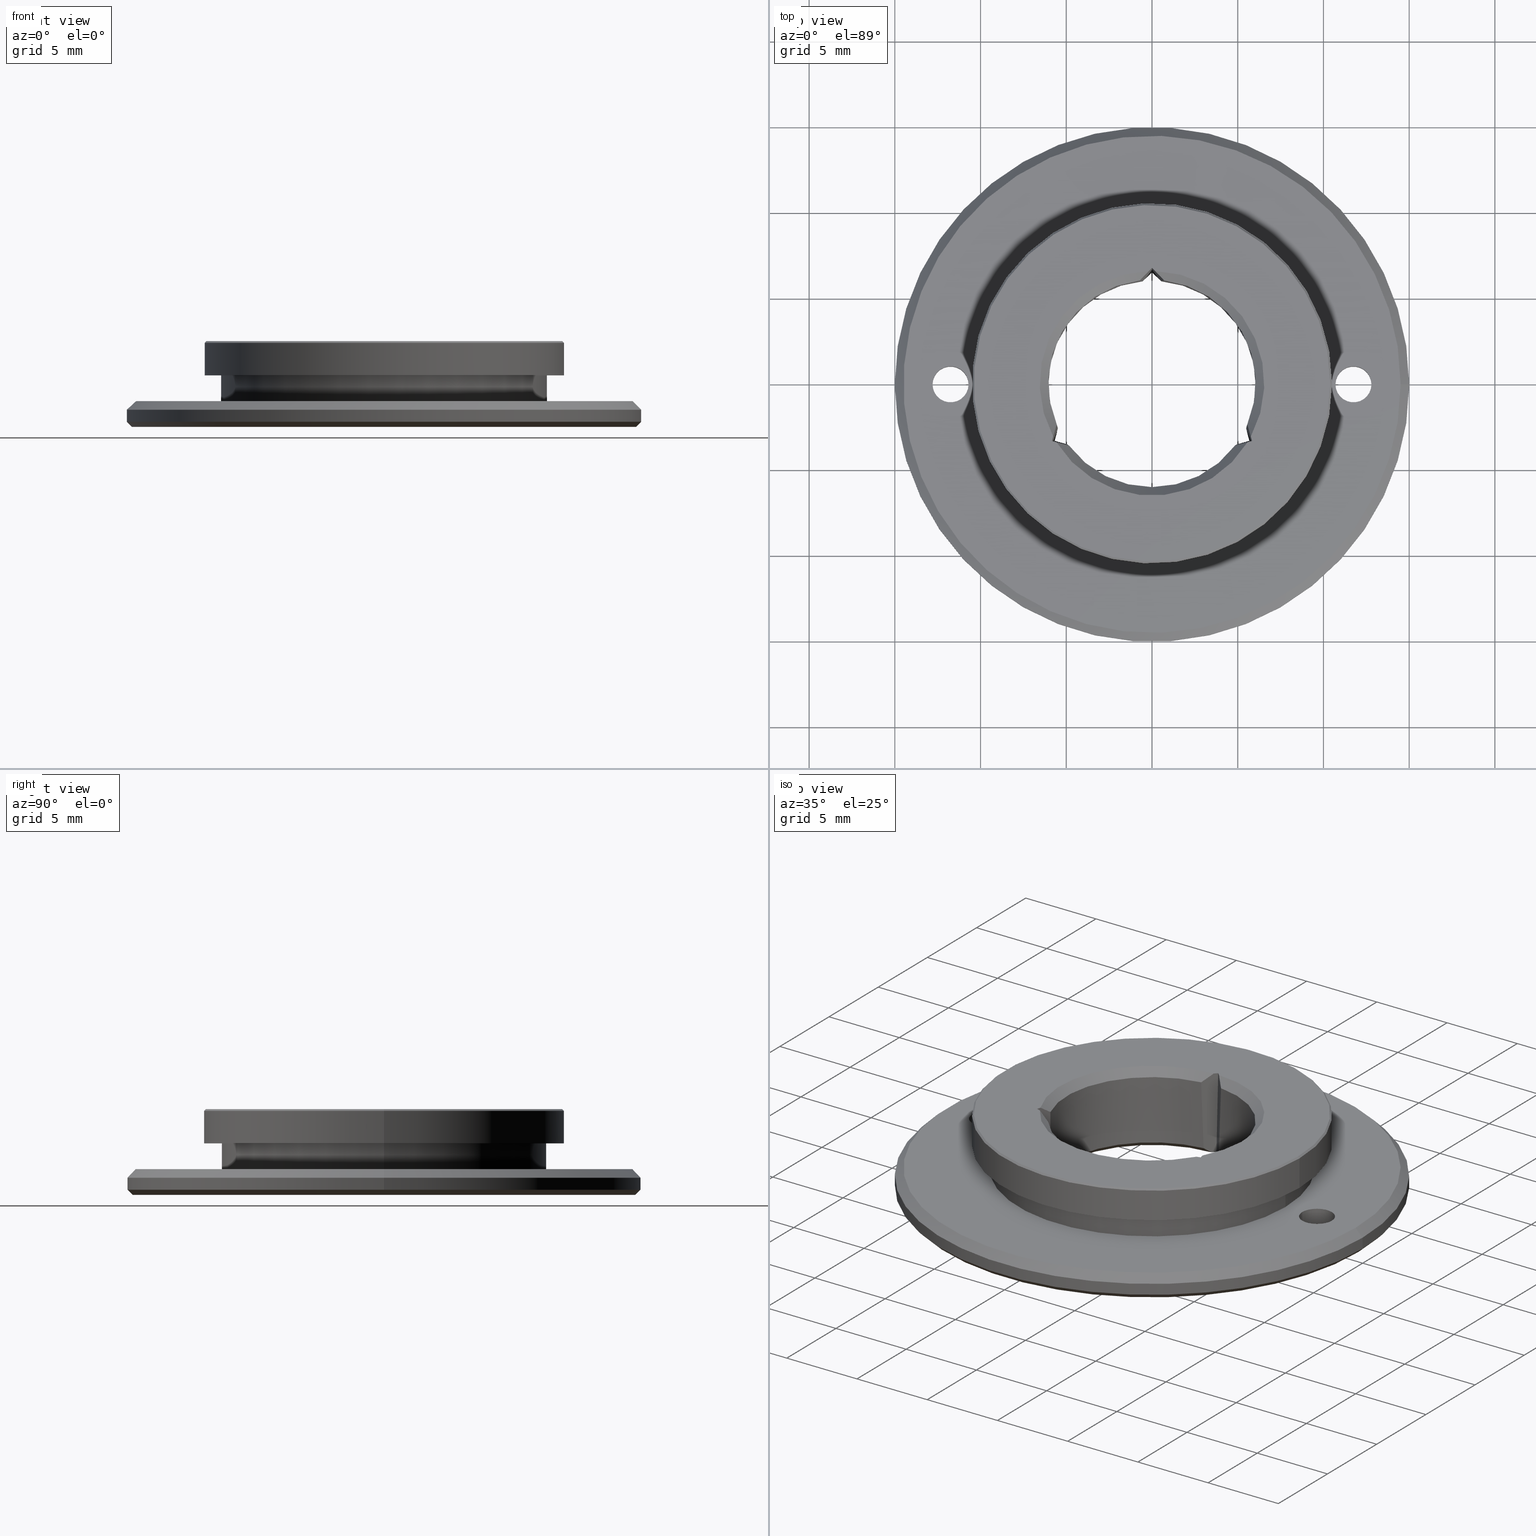
[diagram: canonical four-view strip — front | top / right | iso, engineering-drawing reading convention]
A machine part, canonical four-view strip (front | top / right | iso — engineering-drawing reading convention). The complete STEP part file that produces these views, byte-faithful:
ISO-10303-21;
HEADER;
FILE_DESCRIPTION (( 'STEP AP203' ),
    '1' );
FILE_NAME ('SKJ16-12.STEP',
    '2020-11-13T15:55:45',
    ( 'Adriana' ),
    ( 'HP Inc.' ),
    'SwSTEP 2.0',
    'SolidWorks 2020',
    '' );
FILE_SCHEMA (( 'CONFIG_CONTROL_DESIGN' ));
ENDSEC;

DATA;
#1 = CARTESIAN_POINT ( 'NONE',  ( -5.565936619785342820, -2.840455048098886603, -2.397805460469685457 ) ) ;
#2 = ORIENTED_EDGE ( 'NONE', *, *, #492, .F. ) ;
#3 = FACE_BOUND ( 'NONE', #213, .T. ) ;
#4 = FACE_OUTER_BOUND ( 'NONE', #522, .T. ) ;
#5 = CARTESIAN_POINT ( 'NONE',  ( -12.79999999999998828, 0.0000000000000000000, -2.500000000000004441 ) ) ;
#6 = ORIENTED_EDGE ( 'NONE', *, *, #587, .T. ) ;
#7 = PLANE ( 'NONE',  #392 ) ;
#8 = B_SPLINE_CURVE_WITH_KNOTS ( 'NONE', 3,
 ( #468, #737, #668, #260 ),
 .UNSPECIFIED., .F., .F.,
 ( 4, 4 ),
 ( 3.743883699496791185E-07, 0.0009016725439581060528 ),
 .UNSPECIFIED. ) ;
#9 = CIRCLE ( 'NONE', #658, 6.350000000000008527 ) ;
#10 = DIRECTION ( 'NONE',  ( 1.000000000000000000, 0.0000000000000000000, 0.0000000000000000000 ) ) ;
#11 = CIRCLE ( 'NONE', #536, 15.00000000000000000 ) ;
#12 = CARTESIAN_POINT ( 'NONE',  ( 4.850066468594370406, -3.616539126045306141, 2.000000000000015099 ) ) ;
#13 = CIRCLE ( 'NONE', #539, 1.049999999999988498 ) ;
#14 = VERTEX_POINT ( 'NONE', #804 ) ;
#15 = VERTEX_POINT ( 'NONE', #323 ) ;
#16 = CARTESIAN_POINT ( 'NONE',  ( 10.70000000000001172, 0.0000000000000000000, -2.500000000000004441 ) ) ;
#17 = EDGE_CURVE ( 'NONE', #656, #547, #703, .T. ) ;
#18 = CARTESIAN_POINT ( 'NONE',  ( -5.577473270500524549, -3.434281863337980578, 2.500000000000002220 ) ) ;
#19 = DATE_TIME_ROLE ( 'creation_date' ) ;
#20 = ORIENTED_EDGE ( 'NONE', *, *, #718, .T. ) ;
#21 = CARTESIAN_POINT ( 'NONE',  ( -4.945673031092773009, -3.484654684401544689, -2.199999999999994404 ) ) ;
#22 = CARTESIAN_POINT ( 'NONE',  ( 0.1854387021565571947, 6.547374472851121396, 2.500000000000001776 ) ) ;
#23 =( BOUNDED_CURVE ( )  B_SPLINE_CURVE ( 3, ( #236, #497, #371, #168 ),
 .UNSPECIFIED., .F., .T. ) 
 B_SPLINE_CURVE_WITH_KNOTS ( ( 4, 4 ),
 ( 5.587985923945604227, 5.614911195664047838 ),
 .UNSPECIFIED. ) 
 CURVE ( )  GEOMETRIC_REPRESENTATION_ITEM ( )  RATIONAL_B_SPLINE_CURVE ( ( 1.000000000000000000, 0.9999395867243703329, 0.9999395867243703329, 1.000000000000000000 ) ) 
 REPRESENTATION_ITEM ( '' )  );
#24 = EDGE_LOOP ( 'NONE', ( #408, #119, #527, #268 ) ) ;
#25 = DIRECTION ( 'NONE',  ( -0.0000000000000000000, -0.0000000000000000000, 1.000000000000000000 ) ) ;
#26 = AXIS2_PLACEMENT_3D ( 'NONE', #721, #573, #644 ) ;
#27 = ADVANCED_FACE ( 'NONE', ( #299 ), #553, .F. ) ;
#28 = CALENDAR_DATE ( 2020, 13, 11 ) ;
#29 = CARTESIAN_POINT ( 'NONE',  ( 0.5449629645617796170, 6.025405825938700666, -2.199999999999994404 ) ) ;
#30 = VERTEX_POINT ( 'NONE', #178 ) ;
#31 = CARTESIAN_POINT ( 'NONE',  ( -0.2135933081210453777, 6.346406691878955897, -2.500000000000003109 ) ) ;
#32 = PERSON_AND_ORGANIZATION ( #652, #863 ) ;
#33 = DIRECTION ( 'NONE',  ( -0.0000000000000000000, -0.0000000000000000000, 1.000000000000000000 ) ) ;
#34 = PRODUCT_DEFINITION ( 'UNKNOWN', '', #169, #604 ) ;
#35 = DIRECTION ( 'NONE',  ( 0.2588190451025212946, -0.9659258262890680902, 0.0000000000000000000 ) ) ;
#36 = CALENDAR_DATE ( 2020, 13, 11 ) ;
#37 = CARTESIAN_POINT ( 'NONE',  ( 0.0000000000000000000, 0.0000000000000000000, -1.000000000000001776 ) ) ;
#38 = EDGE_CURVE ( 'NONE', #602, #643, #858, .T. ) ;
#39 = ORIENTED_EDGE ( 'NONE', *, *, #725, .F. ) ;
#40 = CARTESIAN_POINT ( 'NONE',  ( 2.869690330493986696, -4.159830115391518923, 2.500000000000001332 ) ) ;
#41 = CALENDAR_DATE ( 2020, 13, 11 ) ;
#42 = ORIENTED_EDGE ( 'NONE', *, *, #211, .F. ) ;
#43 = FACE_BOUND ( 'NONE', #482, .T. ) ;
#44 = CARTESIAN_POINT ( 'NONE',  ( 5.389352763854241779, -3.358180576850615218, -2.500000000000003109 ) ) ;
#45 = EDGE_LOOP ( 'NONE', ( #810 ) ) ;
#46 = DIRECTION ( 'NONE',  ( 1.000000000000000000, 0.0000000000000000000, 0.0000000000000000000 ) ) ;
#47 = DIRECTION ( 'NONE',  ( 1.000000000000000000, 0.0000000000000000000, 0.0000000000000000000 ) ) ;
#48 = AXIS2_PLACEMENT_3D ( 'NONE', #765, #160, #541 ) ;
#49 = EDGE_LOOP ( 'NONE', ( #716, #487, #470, #235 ) ) ;
#50 = CARTESIAN_POINT ( 'NONE',  ( 4.945673031092814753, -3.484654684401483848, -2.199999999999993960 ) ) ;
#51 = EDGE_LOOP ( 'NONE', ( #839 ) ) ;
#52 = FACE_BOUND ( 'NONE', #438, .T. ) ;
#53 = CARTESIAN_POINT ( 'NONE',  ( -5.602946071975249964, -2.988226115028314034, -2.500000000000003109 ) ) ;
#54 = CC_DESIGN_APPROVAL ( #842, ( #327 ) ) ;
#55 = ORIENTED_EDGE ( 'NONE', *, *, #128, .T. ) ;
#56 = CARTESIAN_POINT ( 'NONE',  ( -5.490635995654551849, -2.540751141537190616, -2.199999999999994404 ) ) ;
#57 = ADVANCED_FACE ( 'NONE', ( #454, #698 ), #457, .F. ) ;
#58 = CARTESIAN_POINT ( 'NONE',  ( -5.695113200979015744, -2.876322932736226523, 2.327816139852492583 ) ) ;
#59 = CONICAL_SURFACE ( 'NONE', #405, 10.49999999999999467, 0.7853981633974136400 ) ;
#60 = ORIENTED_EDGE ( 'NONE', *, *, #552, .F. ) ;
#61 = FACE_BOUND ( 'NONE', #733, .T. ) ;
#62 = CONICAL_SURFACE ( 'NONE', #215, 6.550000000000000711, 0.7853981633974482790 ) ;
#63 = CARTESIAN_POINT ( 'NONE',  ( 0.7069815226384784657, 6.008550334868450804, 2.000000000000015099 ) ) ;
#64 = APPROVAL ( #361, 'UNSPECIFIED' ) ;
#65 = VERTEX_POINT ( 'NONE', #676 ) ;
#66 = VERTEX_POINT ( 'NONE', #706 ) ;
#67 = EDGE_CURVE ( 'NONE', #324, #707, #748, .T. ) ;
#68 = DIRECTION ( 'NONE',  ( -1.000000000000000000, 0.0000000000000000000, 0.0000000000000000000 ) ) ;
#69 = ORIENTED_EDGE ( 'NONE', *, *, #774, .T. ) ;
#70 = DIRECTION ( 'NONE',  ( -1.000000000000000000, 0.0000000000000000000, 0.0000000000000000000 ) ) ;
#71 = DIRECTION ( 'NONE',  ( 1.000000000000000000, 0.0000000000000000000, 0.0000000000000000000 ) ) ;
#72 = VERTEX_POINT ( 'NONE', #312 ) ;
#73 = DIRECTION ( 'NONE',  ( 1.000000000000000000, 0.0000000000000000000, 0.0000000000000000000 ) ) ;
#74 = CARTESIAN_POINT ( 'NONE',  ( -5.681126648825904901, -3.280000000000026450, -2.500000000000003109 ) ) ;
#75 = ORIENTED_EDGE ( 'NONE', *, *, #690, .F. ) ;
#76 = DIRECTION ( 'NONE',  ( 0.0000000000000000000, -0.0000000000000000000, 1.000000000000000000 ) ) ;
#77 = CARTESIAN_POINT ( 'NONE',  ( 0.7069815226384784657, 6.008550334868450804, 2.000000000000015099 ) ) ;
#78 = EDGE_LOOP ( 'NONE', ( #42 ) ) ;
#79 = CARTESIAN_POINT ( 'NONE',  ( 5.490635995654580270, -2.540751141537131108, -2.199999999999994404 ) ) ;
#80 = EDGE_CURVE ( 'NONE', #92, #707, #142, .T. ) ;
#81 = DIRECTION ( 'NONE',  ( -0.0000000000000000000, -0.0000000000000000000, -1.000000000000000000 ) ) ;
#82 = PERSON_AND_ORGANIZATION ( #652, #863 ) ;
#83 = DIRECTION ( 'NONE',  ( -0.0000000000000000000, -0.0000000000000000000, 1.000000000000000000 ) ) ;
#84 = DIRECTION ( 'NONE',  ( 1.000000000000000000, 0.0000000000000000000, 0.0000000000000000000 ) ) ;
#85 = EDGE_LOOP ( 'NONE', ( #259, #649, #503, #69, #607, #60 ) ) ;
#86 = CARTESIAN_POINT ( 'NONE',  ( 0.0000000000000000000, 0.0000000000000000000, 3.500000000000002220 ) ) ;
#87 = CLOSED_SHELL ( 'NONE', ( #592, #486, #94, #517, #621, #27, #414, #533, #165, #136, #847, #817, #791, #675, #861, #453, #202, #577, #783, #263, #326, #401, #870, #564, #805, #390, #57 ) ) ;
#88 = CARTESIAN_POINT ( 'NONE',  ( -0.7069815226384644768, 6.008550334868453469, 2.000000000000001332 ) ) ;
#89 = CIRCLE ( 'NONE', #581, 10.49999999999999467 ) ;
#90 = PERSON_AND_ORGANIZATION ( #652, #863 ) ;
#91 = CARTESIAN_POINT ( 'NONE',  ( 5.242874539854074811, -3.400014984538723528, -2.397805460469685013 ) ) ;
#92 = VERTEX_POINT ( 'NONE', #369 ) ;
#93 = DIRECTION ( 'NONE',  ( 1.000000000000000000, 0.0000000000000000000, 0.0000000000000000000 ) ) ;
#94 = ADVANCED_FACE ( 'NONE', ( #449 ), #62, .F. ) ;
#95 = DIRECTION ( 'NONE',  ( -1.000000000000000000, 0.0000000000000000000, 0.0000000000000000000 ) ) ;
#96 = PERSON_AND_ORGANIZATION ( #652, #863 ) ;
#97 = ORIENTED_EDGE ( 'NONE', *, *, #742, .T. ) ;
#98 = FACE_OUTER_BOUND ( 'NONE', #736, .T. ) ;
#99 = LOCAL_TIME ( 9, 55, 45.00000000000000000, #692 ) ;
#100 = VERTEX_POINT ( 'NONE', #655 ) ;
#101 = DIRECTION ( 'NONE',  ( 0.0000000000000000000, -0.0000000000000000000, 1.000000000000000000 ) ) ;
#102 = ORIENTED_EDGE ( 'NONE', *, *, #606, .T. ) ;
#103 = DIRECTION ( 'NONE',  ( -0.0000000000000000000, -0.0000000000000000000, 1.000000000000000000 ) ) ;
#104 = CARTESIAN_POINT ( 'NONE',  ( 0.0000000000000000000, 0.0000000000000000000, -1.000000000000001776 ) ) ;
#105 = ORIENTED_EDGE ( 'NONE', *, *, #642, .T. ) ;
#106 = PLANE ( 'NONE',  #364 ) ;
#107 = DIRECTION ( 'NONE',  ( -0.0000000000000000000, -0.0000000000000000000, 1.000000000000000000 ) ) ;
#108 = ORIENTED_EDGE ( 'NONE', *, *, #257, .F. ) ;
#109 = CARTESIAN_POINT ( 'NONE',  ( -0.09140658750383659492, 6.641406587503838388, 2.500000000000001332 ) ) ;
#110 = CARTESIAN_POINT ( 'NONE',  ( -5.681126648825904901, -3.280000000000026450, -2.500000000000003109 ) ) ;
#111 = CC_DESIGN_DATE_AND_TIME_ASSIGNMENT ( #372, #19, ( #34 ) ) ;
#112 = VECTOR ( 'NONE', #428, 1000.000000000000000 ) ;
#113 = CIRCLE ( 'NONE', #241, 9.499999999999994671 ) ;
#114 = EDGE_LOOP ( 'NONE', ( #179 ) ) ;
#115 = CARTESIAN_POINT ( 'NONE',  ( -5.535578825455445440, -2.441887724500162449, 0.6232676519637634360 ) ) ;
#116 = CONICAL_SURFACE ( 'NONE', #615, 6.049999999999999822, 0.7853981633974482790 ) ;
#117 = DIRECTION ( 'NONE',  ( -0.0000000000000000000, -0.0000000000000000000, 1.000000000000000000 ) ) ;
#118 = EDGE_CURVE ( 'NONE', #15, #821, #719, .T. ) ;
#119 = ORIENTED_EDGE ( 'NONE', *, *, #685, .T. ) ;
#120 = FACE_BOUND ( 'NONE', #51, .T. ) ;
#121 = CARTESIAN_POINT ( 'NONE',  ( -0.5449629645617685147, 6.025405825938700666, -2.199999999999994404 ) ) ;
#122 = LOCAL_TIME ( 9, 55, 45.00000000000000000, #212 ) ;
#123 = ORIENTED_EDGE ( 'NONE', *, *, #710, .F. ) ;
#124 = CARTESIAN_POINT ( 'NONE',  ( -2.869690330493739339, -4.159830115391582872, 2.500000000000001332 ) ) ;
#125 = CARTESIAN_POINT ( 'NONE',  ( 11.75000000000000000, 0.0000000000000000000, -2.500000000000004441 ) ) ;
#126 = AXIS2_PLACEMENT_3D ( 'NONE', #249, #410, #135 ) ;
#127 = VERTEX_POINT ( 'NONE', #5 ) ;
#128 = EDGE_CURVE ( 'NONE', #548, #548, #684, .T. ) ;
#129 = VERTEX_POINT ( 'NONE', #29 ) ;
#130 = CARTESIAN_POINT ( 'NONE',  ( 0.0000000000000000000, 6.559999999999999609, -2.500000000000003109 ) ) ;
#131 = AXIS2_PLACEMENT_3D ( 'NONE', #383, #101, #654 ) ;
#132 = CARTESIAN_POINT ( 'NONE',  ( 5.681126648825947534, -3.279999999999946958, -2.500000000000003109 ) ) ;
#133 = EDGE_LOOP ( 'NONE', ( #664, #140, #370, #728, #467, #554, #102, #334, #871 ) ) ;
#134 = CARTESIAN_POINT ( 'NONE',  ( 0.0000000000000000000, 6.559999999999999609, -2.500000000000003109 ) ) ;
#135 = DIRECTION ( 'NONE',  ( 1.000000000000000000, 0.0000000000000000000, 0.0000000000000000000 ) ) ;
#136 = ADVANCED_FACE ( 'NONE', ( #852, #382 ), #59, .T. ) ;
#137 = ORIENTED_EDGE ( 'NONE', *, *, #660, .F. ) ;
#138 = CARTESIAN_POINT ( 'NONE',  ( 0.0000000000000000000, 0.0000000000000000000, 3.500000000000002220 ) ) ;
#139 = DIRECTION ( 'NONE',  ( 1.000000000000000000, 0.0000000000000000000, 0.0000000000000000000 ) ) ;
#140 = ORIENTED_EDGE ( 'NONE', *, *, #316, .T. ) ;
#141 = VERTEX_POINT ( 'NONE', #682 ) ;
#142 = CIRCLE ( 'NONE', #333, 6.350000000000008527 ) ;
#143 = DIRECTION ( 'NONE',  ( -0.9656374875593078944, 0.2587417849727111641, -0.02443217815265320836 ) ) ;
#144 = CIRCLE ( 'NONE', #273, 6.550000000000000711 ) ;
#145 = EDGE_LOOP ( 'NONE', ( #562, #264, #784, #801, #632, #379 ) ) ;
#146 = FACE_OUTER_BOUND ( 'NONE', #145, .T. ) ;
#147 = EDGE_CURVE ( 'NONE', #602, #129, #171, .T. ) ;
#148 = CARTESIAN_POINT ( 'NONE',  ( 5.626589387077160609, -2.636388150905939032, 2.160495414665191127 ) ) ;
#149 = VERTEX_POINT ( 'NONE', #651 ) ;
#150 = CYLINDRICAL_SURFACE ( 'NONE', #780, 10.49999999999999467 ) ;
#151 = UNCERTAINTY_MEASURE_WITH_UNIT (LENGTH_MEASURE( 1.000000000000000082E-05 ), #845, 'distance_accuracy_value', 'NONE');
#152 = CYLINDRICAL_SURFACE ( 'NONE', #461, 6.049999999999999822 ) ;
#153 = EDGE_CURVE ( 'NONE', #585, #707, #225, .T. ) ;
#154 = CC_DESIGN_DATE_AND_TIME_ASSIGNMENT ( #546, #568, ( #327 ) ) ;
#155 = CARTESIAN_POINT ( 'NONE',  ( 4.945673031092814753, -3.484654684401483848, -2.199999999999993960 ) ) ;
#156 = DIRECTION ( 'NONE',  ( 1.000000000000000000, 0.0000000000000000000, 0.0000000000000000000 ) ) ;
#157 = ORIENTED_EDGE ( 'NONE', *, *, #606, .F. ) ;
#158 = LINE ( 'NONE', #124, #556 ) ;
#159 = CIRCLE ( 'NONE', #628, 14.70000000000000462 ) ;
#160 = DIRECTION ( 'NONE',  ( -0.0000000000000000000, -0.0000000000000000000, 1.000000000000000000 ) ) ;
#161 = CIRCLE ( 'NONE', #670, 6.049999999999999822 ) ;
#162 = CALENDAR_DATE ( 2020, 13, 11 ) ;
#163 = ORIENTED_EDGE ( 'NONE', *, *, #287, .T. ) ;
#164 = CARTESIAN_POINT ( 'NONE',  ( 0.0000000000000000000, 0.0000000000000000000, -2.199999999999994404 ) ) ;
#165 = ADVANCED_FACE ( 'NONE', ( #245, #800 ), #529, .F. ) ;
#166 = PERSON_AND_ORGANIZATION ( #652, #863 ) ;
#167 = VERTEX_POINT ( 'NONE', #344 ) ;
#168 = CARTESIAN_POINT ( 'NONE',  ( -4.850066468594325109, -3.616539126045364760, 2.000000000000015099 ) ) ;
#169 = PRODUCT_DEFINITION_FORMATION_WITH_SPECIFIED_SOURCE ( 'ANY', '', #402, .NOT_KNOWN. ) ;
#170 = VERTEX_POINT ( 'NONE', #121 ) ;
#171 = CIRCLE ( 'NONE', #387, 6.049999999999999822 ) ;
#172 = CARTESIAN_POINT ( 'NONE',  ( -11.75000000000000000, 0.0000000000000000000, -2.500000000000003109 ) ) ;
#173 = AXIS2_PLACEMENT_3D ( 'NONE', #427, #695, #220 ) ;
#174 = VECTOR ( 'NONE', #688, 1000.000000000000000 ) ;
#175 = ORIENTED_EDGE ( 'NONE', *, *, #627, .T. ) ;
#176 = DIRECTION ( 'NONE',  ( -0.0000000000000000000, -0.0000000000000000000, 1.000000000000000000 ) ) ;
#177 = EDGE_CURVE ( 'NONE', #483, #483, #669, .T. ) ;
#178 = CARTESIAN_POINT ( 'NONE',  ( -5.976388874223077395E-16, 6.732813175007672513, 2.500000000000001332 ) ) ;
#179 = ORIENTED_EDGE ( 'NONE', *, *, #520, .F. ) ;
#180 = CC_DESIGN_PERSON_AND_ORGANIZATION_ASSIGNMENT ( #565, #777, ( #169 ) ) ;
#181 = ORIENTED_EDGE ( 'NONE', *, *, #292, .F. ) ;
#182 = EDGE_LOOP ( 'NONE', ( #338 ) ) ;
#183 = DIRECTION ( 'NONE',  ( 0.0000000000000000000, 0.0000000000000000000, -1.000000000000000000 ) ) ;
#184 = DIRECTION ( 'NONE',  ( -0.0000000000000000000, -0.0000000000000000000, 1.000000000000000000 ) ) ;
#185 = EDGE_CURVE ( 'NONE', #72, #243, #285, .T. ) ;
#186 = VECTOR ( 'NONE', #514, 1000.000000000000114 ) ;
#187 = ORIENTED_EDGE ( 'NONE', *, *, #835, .T. ) ;
#188 = CARTESIAN_POINT ( 'NONE',  ( -4.945673031092773009, -3.484654684401544689, -2.199999999999994404 ) ) ;
#189 = DIRECTION ( 'NONE',  ( 1.000000000000000000, 0.0000000000000000000, 0.0000000000000000000 ) ) ;
#190 = ORIENTED_EDGE ( 'NONE', *, *, #211, .T. ) ;
#191 = DIRECTION ( 'NONE',  ( -0.0000000000000000000, -0.0000000000000000000, 1.000000000000000000 ) ) ;
#192 = CARTESIAN_POINT ( 'NONE',  ( 0.2135933081210505680, 6.346406691878955897, -2.500000000000003109 ) ) ;
#193 = CARTESIAN_POINT ( 'NONE',  ( 15.00000000000000000, 0.0000000000000000000, -1.500000000000002220 ) ) ;
#194 = ORIENTED_EDGE ( 'NONE', *, *, #520, .T. ) ;
#195 = DIRECTION ( 'NONE',  ( 0.7071067811865535679, 0.7071067811865415775, 0.0000000000000000000 ) ) ;
#196 = CARTESIAN_POINT ( 'NONE',  ( 5.577473270500571623, -3.434281863337903307, 2.500000000000001776 ) ) ;
#197 = B_SPLINE_CURVE_WITH_KNOTS ( 'NONE', 3,
 ( #394, #58, #663, #744 ),
 .UNSPECIFIED., .F., .F.,
 ( 4, 4 ),
 ( 3.489634720413499955E-07, 0.0009016471190601991949 ),
 .UNSPECIFIED. ) ;
#198 = AXIS2_PLACEMENT_3D ( 'NONE', #465, #735, #601 ) ;
#199 = ORIENTED_EDGE ( 'NONE', *, *, #377, .F. ) ;
#200 = DIRECTION ( 'NONE',  ( -1.000000000000000000, 0.0000000000000000000, 0.0000000000000000000 ) ) ;
#201 = AXIS2_PLACEMENT_3D ( 'NONE', #207, #143, #360 ) ;
#202 = ADVANCED_FACE ( 'NONE', ( #4, #671 ), #317, .T. ) ;
#203 = AXIS2_PLACEMENT_3D ( 'NONE', #868, #191, #860 ) ;
#204 = LINE ( 'NONE', #132, #436 ) ;
#205 = ORIENTED_EDGE ( 'NONE', *, *, #316, .F. ) ;
#206 = CARTESIAN_POINT ( 'NONE',  ( 14.49999999999999822, 0.0000000000000000000, -1.000000000000001776 ) ) ;
#207 = CARTESIAN_POINT ( 'NONE',  ( -5.681126648825904901, -3.280000000000026450, -2.500000000000003109 ) ) ;
#208 = ORIENTED_EDGE ( 'NONE', *, *, #472, .F. ) ;
#209 = DIRECTION ( 'NONE',  ( 0.9659258262890672020, -0.2588190451025247363, 0.0000000000000000000 ) ) ;
#210 = CARTESIAN_POINT ( 'NONE',  ( -5.096473806459425937, -3.554575270419742861, 2.160495414665194236 ) ) ;
#211 = EDGE_CURVE ( 'NONE', #752, #752, #305, .T. ) ;
#212 = COORDINATED_UNIVERSAL_TIME_OFFSET ( 6, 0, .BEHIND. ) ;
#213 = EDGE_LOOP ( 'NONE', ( #458 ) ) ;
#214 = DIRECTION ( 'NONE',  ( 0.0000000000000000000, 0.0000000000000000000, -1.000000000000000000 ) ) ;
#215 = AXIS2_PLACEMENT_3D ( 'NONE', #384, #33, #727 ) ;
#216 = FACE_OUTER_BOUND ( 'NONE', #182, .T. ) ;
#217 = COORDINATED_UNIVERSAL_TIME_OFFSET ( 6, 0, .BEHIND. ) ;
#218 = DIRECTION ( 'NONE',  ( 0.02991425784254757303, 0.01727100481800308840, -0.9994032467279191367 ) ) ;
#219 = DIRECTION ( 'NONE',  ( -0.7071067811865535679, -0.7071067811865414665, 0.0000000000000000000 ) ) ;
#220 = DIRECTION ( 'NONE',  ( 1.000000000000000000, 0.0000000000000000000, 0.0000000000000000000 ) ) ;
#221 = LINE ( 'NONE', #498, #112 ) ;
#222 = MANIFOLD_SOLID_BREP ( '�4.0mm Dowel Hole1', #87 ) ;
#223 = EDGE_CURVE ( 'NONE', #746, #830, #262, .T. ) ;
#224 = APPLICATION_PROTOCOL_DEFINITION ( 'international standard', 'config_control_design', 1994, #589 ) ;
#225 = LINE ( 'NONE', #240, #186 ) ;
#226 = ORIENTED_EDGE ( 'NONE', *, *, #451, .F. ) ;
#227 = CYLINDRICAL_SURFACE ( 'NONE', #232, 6.049999999999999822 ) ;
#228 = CARTESIAN_POINT ( 'NONE',  ( 5.490635995654580270, -2.540751141537131108, -2.199999999999994404 ) ) ;
#229 = ORIENTED_EDGE ( 'NONE', *, *, #742, .F. ) ;
#230 = LINE ( 'NONE', #40, #583 ) ;
#231 = VECTOR ( 'NONE', #797, 1000.000000000000114 ) ;
#232 = AXIS2_PLACEMENT_3D ( 'NONE', #278, #558, #775 ) ;
#233 = EDGE_LOOP ( 'NONE', ( #740, #6, #181, #425 ) ) ;
#234 = DIRECTION ( 'NONE',  ( 0.0000000000000000000, 0.0000000000000000000, -1.000000000000000000 ) ) ;
#235 = ORIENTED_EDGE ( 'NONE', *, *, #38, .T. ) ;
#236 = CARTESIAN_POINT ( 'NONE',  ( -4.945673031092773009, -3.484654684401544689, -2.199999999999994404 ) ) ;
#237 = EDGE_CURVE ( 'NONE', #66, #585, #204, .T. ) ;
#238 = CARTESIAN_POINT ( 'NONE',  ( 0.0000000000000000000, 0.0000000000000000000, 3.500000000000002220 ) ) ;
#239 = AXIS2_PLACEMENT_3D ( 'NONE', #318, #117, #397 ) ;
#240 = CARTESIAN_POINT ( 'NONE',  ( 5.681126648825947534, -3.279999999999946958, -2.500000000000003109 ) ) ;
#241 = AXIS2_PLACEMENT_3D ( 'NONE', #37, #712, #93 ) ;
#242 = APPROVAL_DATE_TIME ( #309, #842 ) ;
#243 = VERTEX_POINT ( 'NONE', #196 ) ;
#244 = DIRECTION ( 'NONE',  ( -1.000000000000000000, 0.0000000000000000000, -0.0000000000000000000 ) ) ;
#245 = FACE_BOUND ( 'NONE', #133, .T. ) ;
#246 = ORIENTED_EDGE ( 'NONE', *, *, #153, .T. ) ;
#247 = CARTESIAN_POINT ( 'NONE',  ( 5.577473270500571623, -3.434281863337903307, 2.500000000000001776 ) ) ;
#248 = LOCAL_TIME ( 9, 55, 45.00000000000000000, #499 ) ;
#249 = CARTESIAN_POINT ( 'NONE',  ( 0.0000000000000000000, 0.0000000000000000000, 0.4999999999999995559 ) ) ;
#250 = EDGE_LOOP ( 'NONE', ( #275, #572, #314, #618 ) ) ;
#251 = CARTESIAN_POINT ( 'NONE',  ( -2.961096917997767086, 7.343423527887715352, 2.500000000000001332 ) ) ;
#252 = DIRECTION ( 'NONE',  ( -0.02991425784254797896, 0.01727100481800239104, -0.9994032467279191367 ) ) ;
#253 = VERTEX_POINT ( 'NONE', #193 ) ;
#254 = ORIENTED_EDGE ( 'NONE', *, *, #774, .F. ) ;
#255 = CARTESIAN_POINT ( 'NONE',  ( 5.602946071975287268, -2.988226115028243424, -2.500000000000003109 ) ) ;
#256 = CARTESIAN_POINT ( 'NONE',  ( 5.681126648825947534, -3.279999999999946958, -2.500000000000003109 ) ) ;
#257 = EDGE_CURVE ( 'NONE', #346, #399, #789, .T. ) ;
#258 = CARTESIAN_POINT ( 'NONE',  ( 15.00000000000000000, 0.0000000000000000000, -2.199999999999994404 ) ) ;
#259 = ORIENTED_EDGE ( 'NONE', *, *, #456, .F. ) ;
#260 = CARTESIAN_POINT ( 'NONE',  ( -0.1854387021565554738, 6.547374472851121396, 2.500000000000001776 ) ) ;
#261 = CARTESIAN_POINT ( 'NONE',  ( 0.0000000000000000000, 0.0000000000000000000, -2.500000000000003109 ) ) ;
#262 = B_SPLINE_CURVE_WITH_KNOTS ( 'NONE', 3,
 ( #532, #862, #1, #53 ),
 .UNSPECIFIED., .F., .F.,
 ( 4, 4 ),
 ( 3.757412882237604441E-07, 0.0005506914735217041234 ),
 .UNSPECIFIED. ) ;
#263 = ADVANCED_FACE ( 'NONE', ( #460 ), #477, .F. ) ;
#264 = ORIENTED_EDGE ( 'NONE', *, *, #345, .F. ) ;
#265 = FACE_OUTER_BOUND ( 'NONE', #761, .T. ) ;
#266 = CARTESIAN_POINT ( 'NONE',  ( 0.0000000000000000000, 0.0000000000000000000, -2.500000000000003109 ) ) ;
#267 = CIRCLE ( 'NONE', #239, 6.350000000000008527 ) ;
#268 = ORIENTED_EDGE ( 'NONE', *, *, #223, .T. ) ;
#269 = CARTESIAN_POINT ( 'NONE',  ( -5.681126648825904901, -3.280000000000026450, -2.500000000000003109 ) ) ;
#270 = AXIS2_PLACEMENT_3D ( 'NONE', #640, #849, #570 ) ;
#271 = FACE_OUTER_BOUND ( 'NONE', #639, .T. ) ;
#272 = CARTESIAN_POINT ( 'NONE',  ( 4.914396994918600825, -3.529043888680089669, -0.7768169317321378387 ) ) ;
#273 = AXIS2_PLACEMENT_3D ( 'NONE', #625, #25, #413 ) ;
#274 = VERTEX_POINT ( 'NONE', #739 ) ;
#275 = ORIENTED_EDGE ( 'NONE', *, *, #433, .F. ) ;
#276 = LINE ( 'NONE', #555, #174 ) ;
#277 = EDGE_CURVE ( 'NONE', #418, #418, #159, .T. ) ;
#278 = CARTESIAN_POINT ( 'NONE',  ( 0.0000000000000000000, 0.0000000000000000000, 3.500000000000002220 ) ) ;
#279 = COORDINATED_UNIVERSAL_TIME_OFFSET ( 6, 0, .BEHIND. ) ;
#280 = VERTEX_POINT ( 'NONE', #192 ) ;
#281 = CARTESIAN_POINT ( 'NONE',  ( 9.499999999999994671, 0.0000000000000000000, 0.4999999999999995559 ) ) ;
#282 = APPROVAL_DATE_TIME ( #770, #561 ) ;
#283 = ORIENTED_EDGE ( 'NONE', *, *, #177, .F. ) ;
#284 = DIRECTION ( 'NONE',  ( -0.0000000000000000000, -0.0000000000000000000, 1.000000000000000000 ) ) ;
#285 = CIRCLE ( 'NONE', #448, 6.550000000000000711 ) ;
#286 = CONICAL_SURFACE ( 'NONE', #389, 6.550000000000000711, 0.7853981633974482790 ) ;
#287 = EDGE_CURVE ( 'NONE', #821, #830, #469, .T. ) ;
#288 = EDGE_CURVE ( 'NONE', #446, #830, #9, .T. ) ;
#289 = DIRECTION ( 'NONE',  ( 0.9656374875593017881, 0.2587417849727338126, -0.02443217815265320489 ) ) ;
#290 = B_SPLINE_CURVE_WITH_KNOTS ( 'NONE', 3,
 ( #247, #396, #393, #665 ),
 .UNSPECIFIED., .F., .F.,
 ( 4, 4 ),
 ( 3.489634726309341076E-07, 0.0009016471190607880251 ),
 .UNSPECIFIED. ) ;
#291 = DATE_AND_TIME ( #28, #429 ) ;
#292 = EDGE_CURVE ( 'NONE', #756, #280, #267, .T. ) ;
#293 = DIRECTION ( 'NONE',  ( -1.000000000000000000, 0.0000000000000000000, 0.0000000000000000000 ) ) ;
#294 = ORIENTED_EDGE ( 'NONE', *, *, #337, .F. ) ;
#295 = LINE ( 'NONE', #609, #502 ) ;
#296 = CARTESIAN_POINT ( 'NONE',  ( -0.5449629645617685147, 6.025405825938700666, -2.199999999999994404 ) ) ;
#297 = PRODUCT_DEFINITION_SHAPE ( 'NONE', 'NONE',  #34 ) ;
#298 = PERSON_AND_ORGANIZATION ( #652, #863 ) ;
#299 = FACE_OUTER_BOUND ( 'NONE', #24, .T. ) ;
#300 = EDGE_CURVE ( 'NONE', #462, #547, #197, .T. ) ;
#301 = FACE_BOUND ( 'NONE', #506, .T. ) ;
#302 = APPROVAL_DATE_TIME ( #291, #64 ) ;
#303 = EDGE_LOOP ( 'NONE', ( #578 ) ) ;
#304 = CARTESIAN_POINT ( 'NONE',  ( 0.0000000000000000000, 0.0000000000000000000, 2.000000000000000888 ) ) ;
#305 = CIRCLE ( 'NONE', #126, 9.499999999999994671 ) ;
#306 = ORIENTED_EDGE ( 'NONE', *, *, #17, .T. ) ;
#307 = CARTESIAN_POINT ( 'NONE',  ( 5.490635995654580270, -2.540751141537131108, -2.199999999999994404 ) ) ;
#308 = EDGE_CURVE ( 'NONE', #141, #141, #420, .T. ) ;
#309 = DATE_AND_TIME ( #41, #122 ) ;
#310 = CARTESIAN_POINT ( 'NONE',  ( 0.3230620799313105862, 6.240470032637636777, -2.397805460469685013 ) ) ;
#311 = AXIS2_PLACEMENT_3D ( 'NONE', #352, #424, #705 ) ;
#312 = CARTESIAN_POINT ( 'NONE',  ( -5.577473270500524549, -3.434281863337980578, 2.500000000000002220 ) ) ;
#313 = CC_DESIGN_PERSON_AND_ORGANIZATION_ASSIGNMENT ( #32, #838, ( #327 ) ) ;
#314 = ORIENTED_EDGE ( 'NONE', *, *, #526, .T. ) ;
#315 = FACE_OUTER_BOUND ( 'NONE', #864, .T. ) ;
#316 = EDGE_CURVE ( 'NONE', #30, #346, #593, .T. ) ;
#317 = CONICAL_SURFACE ( 'NONE', #813, 14.70000000000000462, 0.7853981633974251864 ) ;
#318 = CARTESIAN_POINT ( 'NONE',  ( 0.0000000000000000000, 0.0000000000000000000, -2.500000000000003109 ) ) ;
#319 = CIRCLE ( 'NONE', #48, 15.00000000000000000 ) ;
#320 = VECTOR ( 'NONE', #528, 1000.000000000000114 ) ;
#321 = EDGE_LOOP ( 'NONE', ( #105 ) ) ;
#322 = CARTESIAN_POINT ( 'NONE',  ( -0.7069815226384644768, 6.008550334868453469, 2.000000000000001332 ) ) ;
#323 = CARTESIAN_POINT ( 'NONE',  ( -5.830787248491194674, -3.366406587503864678, 2.500000000000000444 ) ) ;
#324 = VERTEX_POINT ( 'NONE', #332 ) ;
#325 = FACE_OUTER_BOUND ( 'NONE', #867, .T. ) ;
#326 = ADVANCED_FACE ( 'NONE', ( #340 ), #605, .F. ) ;
#327 = SECURITY_CLASSIFICATION ( '', '', #368 ) ;
#328 = DIRECTION ( 'NONE',  ( 0.0000000000000000000, 0.0000000000000000000, -1.000000000000000000 ) ) ;
#329 = ORIENTED_EDGE ( 'NONE', *, *, #481, .T. ) ;
#330 = DIRECTION ( 'NONE',  ( -1.000000000000000000, 0.0000000000000000000, 0.0000000000000000000 ) ) ;
#331 = B_SPLINE_CURVE_WITH_KNOTS ( 'NONE', 3,
 ( #366, #210, #544, #18 ),
 .UNSPECIFIED., .F., .F.,
 ( 4, 4 ),
 ( 3.743883699551102938E-07, 0.0009016725439581060528 ),
 .UNSPECIFIED. ) ;
#332 = CARTESIAN_POINT ( 'NONE',  ( 4.945673031092814753, -3.484654684401483848, -2.199999999999993960 ) ) ;
#333 = AXIS2_PLACEMENT_3D ( 'NONE', #495, #107, #638 ) ;
#334 = ORIENTED_EDGE ( 'NONE', *, *, #710, .T. ) ;
#335 = CARTESIAN_POINT ( 'NONE',  ( -11.75000000000000000, 0.0000000000000000000, -2.500000000000004441 ) ) ;
#336 = DIRECTION ( 'NONE',  ( 0.9659258262890613178, 0.2588190451025469963, 0.0000000000000000000 ) ) ;
#337 = EDGE_CURVE ( 'NONE', #446, #100, #221, .T. ) ;
#338 = ORIENTED_EDGE ( 'NONE', *, *, #177, .T. ) ;
#339 = CARTESIAN_POINT ( 'NONE',  ( -5.389352763854197370, -3.358180576850688492, -2.500000000000003109 ) ) ;
#340 = FACE_OUTER_BOUND ( 'NONE', #85, .T. ) ;
#341 = PRODUCT_RELATED_PRODUCT_CATEGORY ( 'detail', '', ( #402 ) ) ;
#342 = EDGE_LOOP ( 'NONE', ( #208 ) ) ;
#343 = CARTESIAN_POINT ( 'NONE',  ( 0.0000000000000000000, 0.0000000000000000000, -2.199999999999994404 ) ) ;
#344 = CARTESIAN_POINT ( 'NONE',  ( 5.762911972657124515, -3.113092609513114617, 2.500000000000001332 ) ) ;
#345 = EDGE_CURVE ( 'NONE', #170, #656, #403, .T. ) ;
#346 = VERTEX_POINT ( 'NONE', #22 ) ;
#347 = CARTESIAN_POINT ( 'NONE',  ( 0.0000000000000000000, 0.0000000000000000000, 3.500000000000002220 ) ) ;
#348 = CIRCLE ( 'NONE', #513, 1.049999999999988498 ) ;
#349 = EDGE_CURVE ( 'NONE', #92, #821, #434, .T. ) ;
#350 = AXIS2_PLACEMENT_3D ( 'NONE', #134, #811, #219 ) ;
#351 = CARTESIAN_POINT ( 'NONE',  ( 5.762911972657124515, -3.113092609513114617, 2.500000000000001332 ) ) ;
#352 = CARTESIAN_POINT ( 'NONE',  ( 0.0000000000000000000, 0.0000000000000000000, 0.0000000000000000000 ) ) ;
#353 = ORIENTED_EDGE ( 'NONE', *, *, #433, .T. ) ;
#354 = CARTESIAN_POINT ( 'NONE',  ( 5.565936619785377459, -2.840455048098819102, -2.397805460469685901 ) ) ;
#355 = CYLINDRICAL_SURFACE ( 'NONE', #437, 15.00000000000000000 ) ;
#356 =( GEOMETRIC_REPRESENTATION_CONTEXT ( 3 ) GLOBAL_UNCERTAINTY_ASSIGNED_CONTEXT ( ( #151 ) ) GLOBAL_UNIT_ASSIGNED_CONTEXT ( ( #845, #637, #760 ) ) REPRESENTATION_CONTEXT ( 'NONE', 'WORKASPACE' ) );
#357 = MECHANICAL_CONTEXT ( 'NONE', #589, 'mechanical' ) ;
#358 = ORIENTED_EDGE ( 'NONE', *, *, #118, .F. ) ;
#359 = PLANE ( 'NONE',  #689 ) ;
#360 = DIRECTION ( 'NONE',  ( -0.2588190451024986460, -0.9659258262890743074, 0.0000000000000000000 ) ) ;
#361 = APPROVAL_STATUS ( 'not_yet_approved' ) ;
#362 = DIRECTION ( 'NONE',  ( -1.000000000000000000, 0.0000000000000000000, 0.0000000000000000000 ) ) ;
#363 = CARTESIAN_POINT ( 'NONE',  ( -0.1854387021565554738, 6.547374472851121396, 2.500000000000001776 ) ) ;
#364 = AXIS2_PLACEMENT_3D ( 'NONE', #785, #773, #851 ) ;
#365 = ORIENTED_EDGE ( 'NONE', *, *, #526, .F. ) ;
#366 = CARTESIAN_POINT ( 'NONE',  ( -4.850066468594325109, -3.616539126045364760, 2.000000000000015099 ) ) ;
#367 = CIRCLE ( 'NONE', #203, 10.49999999999999467 ) ;
#368 = SECURITY_CLASSIFICATION_LEVEL ( 'unclassified' ) ;
#369 = CARTESIAN_POINT ( 'NONE',  ( -5.389352763854197370, -3.358180576850688492, -2.500000000000003109 ) ) ;
#370 = ORIENTED_EDGE ( 'NONE', *, *, #718, .F. ) ;
#371 = CARTESIAN_POINT ( 'NONE',  ( -4.882526215334218378, -3.573008025245587138, 0.6232676519636580759 ) ) ;
#372 = DATE_AND_TIME ( #489, #753 ) ;
#373 = EDGE_LOOP ( 'NONE', ( #20, #792, #836, #421 ) ) ;
#374 = CARTESIAN_POINT ( 'NONE',  ( 0.0000000000000000000, 0.0000000000000000000, -1.500000000000002220 ) ) ;
#375 = VERTEX_POINT ( 'NONE', #484 ) ;
#376 = CARTESIAN_POINT ( 'NONE',  ( 0.4334755431898297817, 6.133518857966151039, -2.297631136756340897 ) ) ;
#377 = EDGE_CURVE ( 'NONE', #149, #72, #331, .T. ) ;
#378 = CIRCLE ( 'NONE', #816, 6.550000000000000711 ) ;
#379 = ORIENTED_EDGE ( 'NONE', *, *, #635, .F. ) ;
#380 = CARTESIAN_POINT ( 'NONE',  ( 11.75000000000000000, 0.0000000000000000000, -1.000000000000001776 ) ) ;
#381 =( BOUNDED_CURVE ( )  B_SPLINE_CURVE ( 3, ( #741, #115, #409, #865 ),
 .UNSPECIFIED., .F., .T. ) 
 B_SPLINE_CURVE_WITH_KNOTS ( ( 4, 4 ),
 ( 0.6682741115155257372, 0.6951993832339693480 ),
 .UNSPECIFIED. ) 
 CURVE ( )  GEOMETRIC_REPRESENTATION_ITEM ( )  RATIONAL_B_SPLINE_CURVE ( ( 1.000000000000000000, 0.9999395867243703329, 0.9999395867243703329, 1.000000000000000000 ) ) 
 REPRESENTATION_ITEM ( '' )  );
#382 = FACE_OUTER_BOUND ( 'NONE', #509, .T. ) ;
#383 = CARTESIAN_POINT ( 'NONE',  ( 0.0000000000000000000, 14.70000000000000462, -2.500000000000003109 ) ) ;
#384 = CARTESIAN_POINT ( 'NONE',  ( 0.0000000000000000000, 0.0000000000000000000, 2.500000000000001332 ) ) ;
#385 = EDGE_LOOP ( 'NONE', ( #388 ) ) ;
#386 = LINE ( 'NONE', #109, #856 ) ;
#387 = AXIS2_PLACEMENT_3D ( 'NONE', #857, #834, #790 ) ;
#388 = ORIENTED_EDGE ( 'NONE', *, *, #481, .F. ) ;
#389 = AXIS2_PLACEMENT_3D ( 'NONE', #439, #782, #575 ) ;
#390 = ADVANCED_FACE ( 'NONE', ( #216, #702 ), #758, .F. ) ;
#391 = ORIENTED_EDGE ( 'NONE', *, *, #540, .F. ) ;
#392 = AXIS2_PLACEMENT_3D ( 'NONE', #269, #538, #209 ) ;
#393 = CARTESIAN_POINT ( 'NONE',  ( 5.096473806459470346, -3.554575270419678468, 2.160495414665194236 ) ) ;
#394 = CARTESIAN_POINT ( 'NONE',  ( -5.762911972657084547, -3.113092609513188780, 2.500000000000001332 ) ) ;
#395 = ORIENTED_EDGE ( 'NONE', *, *, #505, .F. ) ;
#396 = CARTESIAN_POINT ( 'NONE',  ( 5.338525329726858004, -3.493951243107796145, 2.327816139852492583 ) ) ;
#397 = DIRECTION ( 'NONE',  ( 1.000000000000000000, 0.0000000000000000000, 0.0000000000000000000 ) ) ;
#398 = EDGE_CURVE ( 'NONE', #399, #129, #464, .T. ) ;
#399 = VERTEX_POINT ( 'NONE', #488 ) ;
#400 = DIRECTION ( 'NONE',  ( 0.0000000000000000000, 0.0000000000000000000, -1.000000000000000000 ) ) ;
#401 = ADVANCED_FACE ( 'NONE', ( #494 ), #709, .F. ) ;
#402 = PRODUCT ( 'SKJ16-12', 'SKJ16-12', '', ( #357 ) ) ;
#403 =( BOUNDED_CURVE ( )  B_SPLINE_CURVE ( 3, ( #296, #563, #691, #88 ),
 .UNSPECIFIED., .F., .T. ) 
 B_SPLINE_CURVE_WITH_KNOTS ( ( 4, 4 ),
 ( 5.587985923945605116, 5.614911195664047838 ),
 .UNSPECIFIED. ) 
 CURVE ( )  GEOMETRIC_REPRESENTATION_ITEM ( )  RATIONAL_B_SPLINE_CURVE ( ( 1.000000000000000000, 0.9999395867243703329, 0.9999395867243703329, 1.000000000000000000 ) ) 
 REPRESENTATION_ITEM ( '' )  );
#404 = DIRECTION ( 'NONE',  ( 1.000000000000000000, 0.0000000000000000000, 0.0000000000000000000 ) ) ;
#405 = AXIS2_PLACEMENT_3D ( 'NONE', #490, #766, #293 ) ;
#406 = CIRCLE ( 'NONE', #270, 6.049999999999999822 ) ;
#407 = B_SPLINE_CURVE_WITH_KNOTS ( 'NONE', 3,
 ( #827, #148, #419, #351 ),
 .UNSPECIFIED., .F., .F.,
 ( 4, 4 ),
 ( 3.743883699493275469E-07, 0.0009016725439581060528 ),
 .UNSPECIFIED. ) ;
#408 = ORIENTED_EDGE ( 'NONE', *, *, #288, .F. ) ;
#409 = CARTESIAN_POINT ( 'NONE',  ( -5.513440156126495850, -2.491470697541336765, -0.7768169317320637868 ) ) ;
#410 = DIRECTION ( 'NONE',  ( -0.0000000000000000000, -0.0000000000000000000, 1.000000000000000000 ) ) ;
#411 = ADVANCED_BREP_SHAPE_REPRESENTATION ( 'SKJ16-12', ( #222, #311 ), #356 ) ;
#412 = EDGE_LOOP ( 'NONE', ( #190 ) ) ;
#413 = DIRECTION ( 'NONE',  ( 1.000000000000000000, 0.0000000000000000000, 0.0000000000000000000 ) ) ;
#414 = ADVANCED_FACE ( 'NONE', ( #626 ), #227, .F. ) ;
#415 = CARTESIAN_POINT ( 'NONE',  ( 0.5301155806177045848, 6.190963421325712090, 2.160495414665194236 ) ) ;
#416 = VERTEX_POINT ( 'NONE', #680 ) ;
#417 = EDGE_LOOP ( 'NONE', ( #714 ) ) ;
#418 = VERTEX_POINT ( 'NONE', #826 ) ;
#419 = CARTESIAN_POINT ( 'NONE',  ( 5.695113200979049495, -2.876322932736155025, 2.327816139852491695 ) ) ;
#420 = CIRCLE ( 'NONE', #730, 1.049999999999988498 ) ;
#421 = ORIENTED_EDGE ( 'NONE', *, *, #456, .T. ) ;
#422 = FACE_BOUND ( 'NONE', #412, .T. ) ;
#423 = FACE_OUTER_BOUND ( 'NONE', #114, .T. ) ;
#424 = DIRECTION ( 'NONE',  ( 0.0000000000000000000, 0.0000000000000000000, 1.000000000000000000 ) ) ;
#425 = ORIENTED_EDGE ( 'NONE', *, *, #796, .T. ) ;
#426 = CARTESIAN_POINT ( 'NONE',  ( -5.602946071975249964, -2.988226115028314034, -2.500000000000003109 ) ) ;
#427 = CARTESIAN_POINT ( 'NONE',  ( 0.0000000000000000000, 0.0000000000000000000, 2.500000000000001332 ) ) ;
#428 = DIRECTION ( 'NONE',  ( 0.7071067811865535679, 0.7071067811865415775, -0.0000000000000000000 ) ) ;
#429 = LOCAL_TIME ( 9, 55, 45.00000000000000000, #279 ) ;
#430 = APPLICATION_PROTOCOL_DEFINITION ( 'international standard', 'config_control_design', 1994, #731 ) ;
#431 = CARTESIAN_POINT ( 'NONE',  ( 0.0000000000000000000, 0.0000000000000000000, -2.199999999999994404 ) ) ;
#432 = CARTESIAN_POINT ( 'NONE',  ( -5.681126648825904901, -3.280000000000026450, -2.500000000000003109 ) ) ;
#433 = EDGE_CURVE ( 'NONE', #825, #324, #161, .T. ) ;
#434 = LINE ( 'NONE', #74, #799 ) ;
#435 = ORIENTED_EDGE ( 'NONE', *, *, #67, .T. ) ;
#436 = VECTOR ( 'NONE', #252, 1000.000000000000227 ) ;
#437 = AXIS2_PLACEMENT_3D ( 'NONE', #622, #820, #139 ) ;
#438 = EDGE_LOOP ( 'NONE', ( #2 ) ) ;
#439 = CARTESIAN_POINT ( 'NONE',  ( 0.0000000000000000000, 0.0000000000000000000, 2.500000000000001332 ) ) ;
#440 = ORIENTED_EDGE ( 'NONE', *, *, #308, .T. ) ;
#441 = DIRECTION ( 'NONE',  ( -0.0000000000000000000, -0.0000000000000000000, 1.000000000000000000 ) ) ;
#442 = EDGE_CURVE ( 'NONE', #375, #324, #620, .T. ) ;
#443 = APPROVAL_PERSON_ORGANIZATION ( #166, #842, #686 ) ;
#444 = ORIENTED_EDGE ( 'NONE', *, *, #17, .F. ) ;
#445 = DIRECTION ( 'NONE',  ( 1.000000000000000000, 0.0000000000000000000, 0.0000000000000000000 ) ) ;
#446 = VERTEX_POINT ( 'NONE', #31 ) ;
#447 = CARTESIAN_POINT ( 'NONE',  ( 5.681126648825947534, -3.279999999999946958, -2.500000000000003109 ) ) ;
#448 = AXIS2_PLACEMENT_3D ( 'NONE', #749, #738, #404 ) ;
#449 = FACE_OUTER_BOUND ( 'NONE', #373, .T. ) ;
#450 = VECTOR ( 'NONE', #463, 1000.000000000000227 ) ;
#451 = EDGE_CURVE ( 'NONE', #614, #614, #319, .T. ) ;
#452 = DIRECTION ( 'NONE',  ( -0.9659258262890612068, -0.2588190451025469407, 0.0000000000000000000 ) ) ;
#453 = ADVANCED_FACE ( 'NONE', ( #423, #754 ), #355, .T. ) ;
#454 = FACE_OUTER_BOUND ( 'NONE', #321, .T. ) ;
#455 = ORIENTED_EDGE ( 'NONE', *, *, #466, .T. ) ;
#456 = EDGE_CURVE ( 'NONE', #643, #167, #407, .T. ) ;
#457 = CYLINDRICAL_SURFACE ( 'NONE', #551, 1.049999999999988498 ) ;
#458 = ORIENTED_EDGE ( 'NONE', *, *, #128, .F. ) ;
#459 = CARTESIAN_POINT ( 'NONE',  ( -0.5449629645617685147, 6.025405825938700666, -2.199999999999994404 ) ) ;
#460 = FACE_OUTER_BOUND ( 'NONE', #850, .T. ) ;
#461 = AXIS2_PLACEMENT_3D ( 'NONE', #86, #634, #855 ) ;
#462 = VERTEX_POINT ( 'NONE', #550 ) ;
#463 = DIRECTION ( 'NONE',  ( 0.2588190451024985905, 0.9659258262890741964, 0.0000000000000000000 ) ) ;
#464 =( BOUNDED_CURVE ( )  B_SPLINE_CURVE ( 3, ( #77, #480, #616, #837 ),
 .UNSPECIFIED., .F., .T. ) 
 B_SPLINE_CURVE_WITH_KNOTS ( ( 4, 4 ),
 ( 0.6682741115155272915, 0.6951993832339711243 ),
 .UNSPECIFIED. ) 
 CURVE ( )  GEOMETRIC_REPRESENTATION_ITEM ( )  RATIONAL_B_SPLINE_CURVE ( ( 1.000000000000000000, 0.9999395867243703329, 0.9999395867243703329, 1.000000000000000000 ) ) 
 REPRESENTATION_ITEM ( '' )  );
#465 = CARTESIAN_POINT ( 'NONE',  ( 0.0000000000000000000, 6.550000000000000711, 2.500000000000001332 ) ) ;
#466 = EDGE_CURVE ( 'NONE', #100, #280, #295, .T. ) ;
#467 = ORIENTED_EDGE ( 'NONE', *, *, #597, .T. ) ;
#468 = CARTESIAN_POINT ( 'NONE',  ( -0.7069815226384644768, 6.008550334868453469, 2.000000000000001332 ) ) ;
#469 = LINE ( 'NONE', #521, #231 ) ;
#470 = ORIENTED_EDGE ( 'NONE', *, *, #147, .F. ) ;
#471 = CARTESIAN_POINT ( 'NONE',  ( -5.242874539854030402, -3.400014984538792362, -2.397805460469685457 ) ) ;
#472 = EDGE_CURVE ( 'NONE', #65, #65, #853, .T. ) ;
#473 = CC_DESIGN_PERSON_AND_ORGANIZATION_ASSIGNMENT ( #96, #485, ( #34 ) ) ;
#474 = CARTESIAN_POINT ( 'NONE',  ( 0.1854387021565571947, 6.547374472851121396, 2.500000000000001776 ) ) ;
#475 = EDGE_LOOP ( 'NONE', ( #576 ) ) ;
#476 = CARTESIAN_POINT ( 'NONE',  ( 5.528520917184541972, -2.691358596661381775, -2.297631136756341341 ) ) ;
#477 = PLANE ( 'NONE',  #611 ) ;
#478 = ORIENTED_EDGE ( 'NONE', *, *, #287, .F. ) ;
#479 = FACE_OUTER_BOUND ( 'NONE', #303, .T. ) ;
#480 = CARTESIAN_POINT ( 'NONE',  ( 0.6530526101212259515, 6.014895749745719833, 0.6232676519637768697 ) ) ;
#481 = EDGE_CURVE ( 'NONE', #416, #416, #89, .T. ) ;
#482 = EDGE_LOOP ( 'NONE', ( #693, #661, #294, #751, #478, #496, #519, #588, #254 ) ) ;
#483 = VERTEX_POINT ( 'NONE', #16 ) ;
#484 = CARTESIAN_POINT ( 'NONE',  ( 4.850066468594370406, -3.616539126045306141, 2.000000000000015099 ) ) ;
#485 = PERSON_AND_ORGANIZATION_ROLE ( 'creator' ) ;
#486 = ADVANCED_FACE ( 'NONE', ( #271 ), #152, .F. ) ;
#487 = ORIENTED_EDGE ( 'NONE', *, *, #398, .T. ) ;
#488 = CARTESIAN_POINT ( 'NONE',  ( 0.7069815226384784657, 6.008550334868450804, 2.000000000000015099 ) ) ;
#489 = CALENDAR_DATE ( 2020, 13, 11 ) ;
#490 = CARTESIAN_POINT ( 'NONE',  ( 0.0000000000000000000, 0.0000000000000000000, 2.400000000000005240 ) ) ;
#491 = FACE_OUTER_BOUND ( 'NONE', #78, .T. ) ;
#492 = EDGE_CURVE ( 'NONE', #14, #14, #113, .T. ) ;
#493 = CARTESIAN_POINT ( 'NONE',  ( 0.0000000000000000000, 0.0000000000000000000, 2.400000000000005240 ) ) ;
#494 = FACE_OUTER_BOUND ( 'NONE', #667, .T. ) ;
#495 = CARTESIAN_POINT ( 'NONE',  ( 0.0000000000000000000, 0.0000000000000000000, -2.500000000000003109 ) ) ;
#496 = ORIENTED_EDGE ( 'NONE', *, *, #349, .F. ) ;
#497 = CARTESIAN_POINT ( 'NONE',  ( -4.914396994918559081, -3.529043888680147845, -0.7768169317322080047 ) ) ;
#498 = CARTESIAN_POINT ( 'NONE',  ( 0.0000000000000000000, 6.559999999999999609, -2.500000000000003109 ) ) ;
#499 = COORDINATED_UNIVERSAL_TIME_OFFSET ( 6, 0, .BEHIND. ) ;
#500 = AXIS2_PLACEMENT_3D ( 'NONE', #869, #289, #832 ) ;
#501 = EDGE_CURVE ( 'NONE', #643, #399, #776, .T. ) ;
#502 = VECTOR ( 'NONE', #764, 1000.000000000000114 ) ;
#503 = ORIENTED_EDGE ( 'NONE', *, *, #796, .F. ) ;
#504 = DIRECTION ( 'NONE',  ( 1.000000000000000000, 0.0000000000000000000, 0.0000000000000000000 ) ) ;
#505 = EDGE_CURVE ( 'NONE', #170, #746, #814, .T. ) ;
#506 = EDGE_LOOP ( 'NONE', ( #534 ) ) ;
#507 = LINE ( 'NONE', #717, #743 ) ;
#508 = CC_DESIGN_APPROVAL ( #64, ( #169 ) ) ;
#509 = EDGE_LOOP ( 'NONE', ( #329 ) ) ;
#510 = DIRECTION ( 'NONE',  ( 1.000000000000000000, 0.0000000000000000000, 0.0000000000000000000 ) ) ;
#511 = ORIENTED_EDGE ( 'NONE', *, *, #398, .F. ) ;
#512 = DIRECTION ( 'NONE',  ( -1.000000000000000000, 0.0000000000000000000, 0.0000000000000000000 ) ) ;
#513 = AXIS2_PLACEMENT_3D ( 'NONE', #380, #234, #512 ) ;
#514 = DIRECTION ( 'NONE',  ( -0.9659258262890612068, -0.2588190451025469963, 0.0000000000000000000 ) ) ;
#515 = ORIENTED_EDGE ( 'NONE', *, *, #549, .F. ) ;
#516 = DIRECTION ( 'NONE',  ( 1.000000000000000000, 0.0000000000000000000, 0.0000000000000000000 ) ) ;
#517 = ADVANCED_FACE ( 'NONE', ( #98 ), #286, .F. ) ;
#518 = CARTESIAN_POINT ( 'NONE',  ( 0.0000000000000000000, 0.0000000000000000000, 2.000000000000000888 ) ) ;
#519 = ORIENTED_EDGE ( 'NONE', *, *, #80, .T. ) ;
#520 = EDGE_CURVE ( 'NONE', #253, #253, #11, .T. ) ;
#521 = CARTESIAN_POINT ( 'NONE',  ( -5.681126648825904901, -3.280000000000026450, -2.500000000000003109 ) ) ;
#522 = EDGE_LOOP ( 'NONE', ( #226 ) ) ;
#523 = CARTESIAN_POINT ( 'NONE',  ( -5.095045373994679494, -3.442160261304744395, -2.297631136756341341 ) ) ;
#524 = VECTOR ( 'NONE', #525, 1000.000000000000114 ) ;
#525 = DIRECTION ( 'NONE',  ( 0.7071067811865602293, -0.7071067811865348052, 0.0000000000000000000 ) ) ;
#526 = EDGE_CURVE ( 'NONE', #149, #375, #406, .T. ) ;
#527 = ORIENTED_EDGE ( 'NONE', *, *, #505, .T. ) ;
#528 = DIRECTION ( 'NONE',  ( 1.630640357938827635E-16, -0.03454200963600563556, -0.9994032467279191367 ) ) ;
#529 = PLANE ( 'NONE',  #198 ) ;
#530 = EDGE_LOOP ( 'NONE', ( #365, #794, #840, #599 ) ) ;
#531 = LINE ( 'NONE', #251, #450 ) ;
#532 = CARTESIAN_POINT ( 'NONE',  ( -5.490635995654551849, -2.540751141537190616, -2.199999999999994404 ) ) ;
#533 = ADVANCED_FACE ( 'NONE', ( #846 ), #844, .F. ) ;
#534 = ORIENTED_EDGE ( 'NONE', *, *, #642, .F. ) ;
#535 = DIRECTION ( 'NONE',  ( -0.0000000000000000000, -0.0000000000000000000, -1.000000000000000000 ) ) ;
#536 = AXIS2_PLACEMENT_3D ( 'NONE', #374, #841, #510 ) ;
#537 = ORIENTED_EDGE ( 'NONE', *, *, #345, .T. ) ;
#538 = DIRECTION ( 'NONE',  ( -0.2587417849727372543, -0.9656374875593009000, -0.02443217815265320142 ) ) ;
#539 = AXIS2_PLACEMENT_3D ( 'NONE', #335, #657, #330 ) ;
#540 = EDGE_CURVE ( 'NONE', #825, #149, #23, .T. ) ;
#541 = DIRECTION ( 'NONE',  ( 1.000000000000000000, 0.0000000000000000000, 0.0000000000000000000 ) ) ;
#542 = EDGE_LOOP ( 'NONE', ( #283 ) ) ;
#543 = FACE_OUTER_BOUND ( 'NONE', #569, .T. ) ;
#544 = CARTESIAN_POINT ( 'NONE',  ( -5.338525329726811819, -3.493951243107867199, 2.327816139852492583 ) ) ;
#545 = CC_DESIGN_APPROVAL ( #561, ( #34 ) ) ;
#546 = DATE_AND_TIME ( #162, #248 ) ;
#547 = VERTEX_POINT ( 'NONE', #708 ) ;
#548 = VERTEX_POINT ( 'NONE', #206 ) ;
#549 = EDGE_CURVE ( 'NONE', #274, #274, #348, .T. ) ;
#550 = CARTESIAN_POINT ( 'NONE',  ( -5.762911972657084547, -3.113092609513188780, 2.500000000000001332 ) ) ;
#551 = AXIS2_PLACEMENT_3D ( 'NONE', #172, #786, #659 ) ;
#552 = EDGE_CURVE ( 'NONE', #167, #66, #507, .T. ) ;
#553 = CONICAL_SURFACE ( 'NONE', #843, 6.049999999999999822, 0.7853981633974482790 ) ;
#554 = ORIENTED_EDGE ( 'NONE', *, *, #185, .F. ) ;
#555 = CARTESIAN_POINT ( 'NONE',  ( 5.681126648825947534, -3.279999999999946958, -2.500000000000003109 ) ) ;
#556 = VECTOR ( 'NONE', #795, 1000.000000000000114 ) ;
#557 = AXIS2_PLACEMENT_3D ( 'NONE', #608, #678, #70 ) ;
#558 = DIRECTION ( 'NONE',  ( -0.0000000000000000000, -0.0000000000000000000, 1.000000000000000000 ) ) ;
#559 = VERTEX_POINT ( 'NONE', #829 ) ;
#560 = DIRECTION ( 'NONE',  ( -0.0000000000000000000, -0.0000000000000000000, 1.000000000000000000 ) ) ;
#561 = APPROVAL ( #641, 'UNSPECIFIED' ) ;
#562 = ORIENTED_EDGE ( 'NONE', *, *, #755, .F. ) ;
#563 = CARTESIAN_POINT ( 'NONE',  ( -0.5990431612079281098, 6.020514586221453968, -0.7768169317319787437 ) ) ;
#564 = ADVANCED_FACE ( 'NONE', ( #715 ), #106, .F. ) ;
#565 = PERSON_AND_ORGANIZATION ( #652, #863 ) ;
#566 = DIRECTION ( 'NONE',  ( 0.0000000000000000000, 0.0000000000000000000, -1.000000000000000000 ) ) ;
#567 = FACE_BOUND ( 'NONE', #542, .T. ) ;
#568 = DATE_TIME_ROLE ( 'classification_date' ) ;
#569 = EDGE_LOOP ( 'NONE', ( #97 ) ) ;
#570 = DIRECTION ( 'NONE',  ( 1.000000000000000000, 0.0000000000000000000, 0.0000000000000000000 ) ) ;
#571 = AXIS2_PLACEMENT_3D ( 'NONE', #138, #767, #619 ) ;
#572 = ORIENTED_EDGE ( 'NONE', *, *, #540, .T. ) ;
#573 = DIRECTION ( 'NONE',  ( -0.0000000000000000000, -0.0000000000000000000, 1.000000000000000000 ) ) ;
#574 = APPROVAL_PERSON_ORGANIZATION ( #617, #561, #697 ) ;
#575 = DIRECTION ( 'NONE',  ( 1.000000000000000000, 0.0000000000000000000, 0.0000000000000000000 ) ) ;
#576 = ORIENTED_EDGE ( 'NONE', *, *, #308, .F. ) ;
#577 = ADVANCED_FACE ( 'NONE', ( #301, #567, #315, #43 ), #779, .F. ) ;
#578 = ORIENTED_EDGE ( 'NONE', *, *, #492, .T. ) ;
#579 = FACE_OUTER_BOUND ( 'NONE', #49, .T. ) ;
#580 = AXIS2_PLACEMENT_3D ( 'NONE', #518, #83, #156 ) ;
#581 = AXIS2_PLACEMENT_3D ( 'NONE', #493, #700, #10 ) ;
#582 = CARTESIAN_POINT ( 'NONE',  ( 5.513440156126522496, -2.491470697541275037, -0.7768169317320064993 ) ) ;
#583 = VECTOR ( 'NONE', #452, 1000.000000000000227 ) ;
#584 = CONICAL_SURFACE ( 'NONE', #557, 15.00000000000000000, 0.7853981633974482790 ) ;
#585 = VERTEX_POINT ( 'NONE', #447 ) ;
#586 = CARTESIAN_POINT ( 'NONE',  ( 5.389352763854241779, -3.358180576850615218, -2.500000000000003109 ) ) ;
#587 = EDGE_CURVE ( 'NONE', #129, #280, #701, .T. ) ;
#588 = ORIENTED_EDGE ( 'NONE', *, *, #153, .F. ) ;
#589 = APPLICATION_CONTEXT ( 'configuration controlled 3d designs of mechanical parts and assemblies' ) ;
#590 = ORIENTED_EDGE ( 'NONE', *, *, #277, .T. ) ;
#591 = CARTESIAN_POINT ( 'NONE',  ( -0.4334755431898210665, 6.133518857966151927, -2.297631136756340897 ) ) ;
#592 = ADVANCED_FACE ( 'NONE', ( #579 ), #788, .F. ) ;
#593 = LINE ( 'NONE', #866, #524 ) ;
#594 = B_SPLINE_CURVE_WITH_KNOTS ( 'NONE', 3,
 ( #339, #471, #523, #188 ),
 .UNSPECIFIED., .F., .F.,
 ( 4, 4 ),
 ( 3.589571253644798981E-07, 0.0005506746893588370696 ),
 .UNSPECIFIED. ) ;
#595 = ORIENTED_EDGE ( 'NONE', *, *, #690, .T. ) ;
#596 = CARTESIAN_POINT ( 'NONE',  ( 5.557047991232830775, -2.392011208823061619, 2.000000000000001332 ) ) ;
#597 = EDGE_CURVE ( 'NONE', #66, #243, #230, .T. ) ;
#598 = CARTESIAN_POINT ( 'NONE',  ( 0.0000000000000000000, 0.0000000000000000000, -2.500000000000003109 ) ) ;
#599 = ORIENTED_EDGE ( 'NONE', *, *, #725, .T. ) ;
#600 = CARTESIAN_POINT ( 'NONE',  ( -0.2135933081210453777, 6.346406691878955897, -2.500000000000003109 ) ) ;
#601 = DIRECTION ( 'NONE',  ( -1.000000000000000000, 0.0000000000000000000, -0.0000000000000000000 ) ) ;
#602 = VERTEX_POINT ( 'NONE', #307 ) ;
#603 = CARTESIAN_POINT ( 'NONE',  ( 0.0000000000000000000, 9.499999999999994671, -1.000000000000001776 ) ) ;
#604 = DESIGN_CONTEXT ( 'detailed design', #731, 'design' ) ;
#605 = PLANE ( 'NONE',  #500 ) ;
#606 = EDGE_CURVE ( 'NONE', #72, #15, #158, .T. ) ;
#607 = ORIENTED_EDGE ( 'NONE', *, *, #237, .F. ) ;
#608 = CARTESIAN_POINT ( 'NONE',  ( 0.0000000000000000000, 0.0000000000000000000, -1.500000000000002220 ) ) ;
#609 = CARTESIAN_POINT ( 'NONE',  ( 0.0000000000000000000, 6.559999999999999609, -2.500000000000003109 ) ) ;
#610 = CARTESIAN_POINT ( 'NONE',  ( 0.0000000000000000000, 0.0000000000000000000, -2.199999999999994404 ) ) ;
#611 = AXIS2_PLACEMENT_3D ( 'NONE', #256, #803, #336 ) ;
#612 = AXIS2_PLACEMENT_3D ( 'NONE', #304, #103, #504 ) ;
#613 = ORIENTED_EDGE ( 'NONE', *, *, #277, .F. ) ;
#614 = VERTEX_POINT ( 'NONE', #258 ) ;
#615 = AXIS2_PLACEMENT_3D ( 'NONE', #343, #214, #200 ) ;
#616 = CARTESIAN_POINT ( 'NONE',  ( 0.5990431612079351043, 6.020514586221453968, -0.7768169317321043099 ) ) ;
#617 = PERSON_AND_ORGANIZATION ( #652, #863 ) ;
#618 = ORIENTED_EDGE ( 'NONE', *, *, #442, .T. ) ;
#619 = DIRECTION ( 'NONE',  ( 1.000000000000000000, 0.0000000000000000000, 0.0000000000000000000 ) ) ;
#620 =( BOUNDED_CURVE ( )  B_SPLINE_CURVE ( 3, ( #12, #636, #272, #155 ),
 .UNSPECIFIED., .F., .T. ) 
 B_SPLINE_CURVE_WITH_KNOTS ( ( 4, 4 ),
 ( 0.6682741115155274025, 0.6951993832339711243 ),
 .UNSPECIFIED. ) 
 CURVE ( )  GEOMETRIC_REPRESENTATION_ITEM ( )  RATIONAL_B_SPLINE_CURVE ( ( 1.000000000000000000, 0.9999395867243703329, 0.9999395867243703329, 1.000000000000000000 ) ) 
 REPRESENTATION_ITEM ( '' )  );
#621 = ADVANCED_FACE ( 'NONE', ( #729 ), #648, .F. ) ;
#622 = CARTESIAN_POINT ( 'NONE',  ( 0.0000000000000000000, 0.0000000000000000000, 3.500000000000002220 ) ) ;
#623 = APPROVAL_PERSON_ORGANIZATION ( #82, #64, #630 ) ;
#624 = EDGE_LOOP ( 'NONE', ( #229 ) ) ;
#625 = CARTESIAN_POINT ( 'NONE',  ( 0.0000000000000000000, 0.0000000000000000000, 2.500000000000001332 ) ) ;
#626 = FACE_OUTER_BOUND ( 'NONE', #250, .T. ) ;
#627 = EDGE_CURVE ( 'NONE', #30, #100, #662, .T. ) ;
#628 = AXIS2_PLACEMENT_3D ( 'NONE', #598, #679, #71 ) ;
#629 = AXIS2_PLACEMENT_3D ( 'NONE', #696, #81, #95 ) ;
#630 = APPROVAL_ROLE ( '' ) ;
#631 = CARTESIAN_POINT ( 'NONE',  ( 5.095045373994722127, -3.442160261304680002, -2.297631136756340453 ) ) ;
#632 = ORIENTED_EDGE ( 'NONE', *, *, #627, .F. ) ;
#633 = AXIS2_PLACEMENT_3D ( 'NONE', #238, #176, #46 ) ;
#634 = DIRECTION ( 'NONE',  ( -0.0000000000000000000, -0.0000000000000000000, 1.000000000000000000 ) ) ;
#635 = EDGE_CURVE ( 'NONE', #854, #30, #386, .T. ) ;
#636 = CARTESIAN_POINT ( 'NONE',  ( 4.882526215334261899, -3.573008025245530295, 0.6232676519637270207 ) ) ;
#637 =( NAMED_UNIT ( * ) PLANE_ANGLE_UNIT ( ) SI_UNIT ( $, .RADIAN. ) );
#638 = DIRECTION ( 'NONE',  ( 1.000000000000000000, 0.0000000000000000000, 0.0000000000000000000 ) ) ;
#639 = EDGE_LOOP ( 'NONE', ( #395, #537, #306, #595 ) ) ;
#640 = CARTESIAN_POINT ( 'NONE',  ( 0.0000000000000000000, 0.0000000000000000000, 2.000000000000000888 ) ) ;
#641 = APPROVAL_STATUS ( 'not_yet_approved' ) ;
#642 = EDGE_CURVE ( 'NONE', #127, #127, #13, .T. ) ;
#643 = VERTEX_POINT ( 'NONE', #596 ) ;
#644 = DIRECTION ( 'NONE',  ( 1.000000000000000000, 0.0000000000000000000, 0.0000000000000000000 ) ) ;
#645 = AXIS2_PLACEMENT_3D ( 'NONE', #104, #560, #47 ) ;
#646 = ORIENTED_EDGE ( 'NONE', *, *, #300, .F. ) ;
#647 = CARTESIAN_POINT ( 'NONE',  ( 0.2135933081210505680, 6.346406691878955897, -2.500000000000003109 ) ) ;
#648 = CONICAL_SURFACE ( 'NONE', #763, 6.049999999999999822, 0.7853981633974482790 ) ;
#649 = ORIENTED_EDGE ( 'NONE', *, *, #38, .F. ) ;
#650 = CARTESIAN_POINT ( 'NONE',  ( 0.5449629645617796170, 6.025405825938700666, -2.199999999999994404 ) ) ;
#651 = CARTESIAN_POINT ( 'NONE',  ( -4.850066468594325109, -3.616539126045364760, 2.000000000000015099 ) ) ;
#652 = PERSON ( 'UNSPECIFIED', 'UNSPECIFIED', 'UNSPECIFIED', ('UNSPECIFIED'), ('UNSPECIFIED'), ('UNSPECIFIED') ) ;
#653 = ORIENTED_EDGE ( 'NONE', *, *, #755, .T. ) ;
#654 = DIRECTION ( 'NONE',  ( 1.000000000000000000, 0.0000000000000000000, 0.0000000000000000000 ) ) ;
#655 = CARTESIAN_POINT ( 'NONE',  ( 0.0000000000000000000, 6.559999999999999609, -2.500000000000003109 ) ) ;
#656 = VERTEX_POINT ( 'NONE', #322 ) ;
#657 = DIRECTION ( 'NONE',  ( -0.0000000000000000000, -0.0000000000000000000, -1.000000000000000000 ) ) ;
#658 = AXIS2_PLACEMENT_3D ( 'NONE', #261, #184, #809 ) ;
#659 = DIRECTION ( 'NONE',  ( -1.000000000000000000, 0.0000000000000000000, 0.0000000000000000000 ) ) ;
#660 = EDGE_CURVE ( 'NONE', #92, #825, #594, .T. ) ;
#661 = ORIENTED_EDGE ( 'NONE', *, *, #466, .F. ) ;
#662 = LINE ( 'NONE', #130, #320 ) ;
#663 = CARTESIAN_POINT ( 'NONE',  ( -5.626589387077131299, -2.636388150906007866, 2.160495414665194236 ) ) ;
#664 = ORIENTED_EDGE ( 'NONE', *, *, #635, .T. ) ;
#665 = CARTESIAN_POINT ( 'NONE',  ( 4.850066468594370406, -3.616539126045306141, 2.000000000000015099 ) ) ;
#666 = CARTESIAN_POINT ( 'NONE',  ( -11.75000000000000000, 0.0000000000000000000, -1.000000000000001776 ) ) ;
#667 = EDGE_LOOP ( 'NONE', ( #772, #163, #798, #75, #646, #123 ) ) ;
#668 = CARTESIAN_POINT ( 'NONE',  ( -0.3565878712521965421, 6.370274175844049758, 2.327816139852491695 ) ) ;
#669 = CIRCLE ( 'NONE', #828, 1.049999999999988498 ) ;
#670 = AXIS2_PLACEMENT_3D ( 'NONE', #610, #768, #683 ) ;
#671 = FACE_BOUND ( 'NONE', #848, .T. ) ;
#672 = ORIENTED_EDGE ( 'NONE', *, *, #80, .F. ) ;
#673 = CARTESIAN_POINT ( 'NONE',  ( 0.0000000000000000000, 0.0000000000000000000, 2.500000000000001332 ) ) ;
#674 = CARTESIAN_POINT ( 'NONE',  ( 0.3565878712522007610, 6.370274175844049758, 2.327816139852492139 ) ) ;
#675 = ADVANCED_FACE ( 'NONE', ( #61, #120, #52, #325 ), #724, .F. ) ;
#676 = CARTESIAN_POINT ( 'NONE',  ( 10.40000000000000568, 0.0000000000000000000, 2.500000000000001332 ) ) ;
#677 = ORIENTED_EDGE ( 'NONE', *, *, #237, .T. ) ;
#678 = DIRECTION ( 'NONE',  ( 0.0000000000000000000, 0.0000000000000000000, -1.000000000000000000 ) ) ;
#679 = DIRECTION ( 'NONE',  ( -0.0000000000000000000, -0.0000000000000000000, 1.000000000000000000 ) ) ;
#680 = CARTESIAN_POINT ( 'NONE',  ( 10.49999999999999467, 0.0000000000000000000, 2.400000000000005240 ) ) ;
#681 = ORIENTED_EDGE ( 'NONE', *, *, #660, .T. ) ;
#682 = CARTESIAN_POINT ( 'NONE',  ( -12.79999999999998828, 0.0000000000000000000, -1.000000000000001776 ) ) ;
#683 = DIRECTION ( 'NONE',  ( 1.000000000000000000, 0.0000000000000000000, 0.0000000000000000000 ) ) ;
#684 = CIRCLE ( 'NONE', #645, 14.49999999999999822 ) ;
#685 = EDGE_CURVE ( 'NONE', #446, #170, #726, .T. ) ;
#686 = APPROVAL_ROLE ( '' ) ;
#687 = ORIENTED_EDGE ( 'NONE', *, *, #442, .F. ) ;
#688 = DIRECTION ( 'NONE',  ( 0.2588190451025213501, -0.9659258262890680902, -0.0000000000000000000 ) ) ;
#689 = AXIS2_PLACEMENT_3D ( 'NONE', #747, #76, #73 ) ;
#690 = EDGE_CURVE ( 'NONE', #547, #746, #381, .T. ) ;
#691 = CARTESIAN_POINT ( 'NONE',  ( -0.6530526101212164036, 6.014895749745721609, 0.6232676519638417068 ) ) ;
#692 = COORDINATED_UNIVERSAL_TIME_OFFSET ( 6, 0, .BEHIND. ) ;
#693 = ORIENTED_EDGE ( 'NONE', *, *, #292, .T. ) ;
#694 = FACE_OUTER_BOUND ( 'NONE', #778, .T. ) ;
#695 = DIRECTION ( 'NONE',  ( -0.0000000000000000000, -0.0000000000000000000, 1.000000000000000000 ) ) ;
#696 = CARTESIAN_POINT ( 'NONE',  ( 11.75000000000000000, 0.0000000000000000000, -2.500000000000003109 ) ) ;
#697 = APPROVAL_ROLE ( '' ) ;
#698 = FACE_OUTER_BOUND ( 'NONE', #475, .T. ) ;
#699 = FACE_OUTER_BOUND ( 'NONE', #385, .T. ) ;
#700 = DIRECTION ( 'NONE',  ( -0.0000000000000000000, -0.0000000000000000000, 1.000000000000000000 ) ) ;
#701 = B_SPLINE_CURVE_WITH_KNOTS ( 'NONE', 3,
 ( #650, #376, #310, #647 ),
 .UNSPECIFIED., .F., .F.,
 ( 4, 4 ),
 ( 3.757412882710466407E-07, 0.0005506914735217494430 ),
 .UNSPECIFIED. ) ;
#702 = FACE_OUTER_BOUND ( 'NONE', #818, .T. ) ;
#703 = CIRCLE ( 'NONE', #580, 6.049999999999999822 ) ;
#704 = AXIS2_PLACEMENT_3D ( 'NONE', #164, #441, #445 ) ;
#705 = DIRECTION ( 'NONE',  ( 1.000000000000000000, 0.0000000000000000000, 0.0000000000000000000 ) ) ;
#706 = CARTESIAN_POINT ( 'NONE',  ( 5.830787248491239971, -3.366406587503782522, 2.500000000000000444 ) ) ;
#707 = VERTEX_POINT ( 'NONE', #586 ) ;
#708 = CARTESIAN_POINT ( 'NONE',  ( -5.557047991232806794, -2.392011208823120683, 2.000000000000015099 ) ) ;
#709 = PLANE ( 'NONE',  #201 ) ;
#710 = EDGE_CURVE ( 'NONE', #15, #462, #531, .T. ) ;
#711 = PERSON_AND_ORGANIZATION_ROLE ( 'design_owner' ) ;
#712 = DIRECTION ( 'NONE',  ( -0.0000000000000000000, -0.0000000000000000000, 1.000000000000000000 ) ) ;
#713 = SHAPE_DEFINITION_REPRESENTATION ( #297, #411 ) ;
#714 = ORIENTED_EDGE ( 'NONE', *, *, #472, .T. ) ;
#715 = FACE_OUTER_BOUND ( 'NONE', #781, .T. ) ;
#716 = ORIENTED_EDGE ( 'NONE', *, *, #501, .T. ) ;
#717 = CARTESIAN_POINT ( 'NONE',  ( 2.961096917997558364, 7.343423527887734004, 2.500000000000001332 ) ) ;
#718 = EDGE_CURVE ( 'NONE', #167, #346, #378, .T. ) ;
#719 = LINE ( 'NONE', #110, #759 ) ;
#720 = ORIENTED_EDGE ( 'NONE', *, *, #349, .T. ) ;
#721 = CARTESIAN_POINT ( 'NONE',  ( 0.0000000000000000000, 0.0000000000000000000, 2.500000000000001332 ) ) ;
#722 = ORIENTED_EDGE ( 'NONE', *, *, #67, .F. ) ;
#723 = ORIENTED_EDGE ( 'NONE', *, *, #587, .F. ) ;
#724 = PLANE ( 'NONE',  #745 ) ;
#725 = EDGE_CURVE ( 'NONE', #243, #375, #290, .T. ) ;
#726 = B_SPLINE_CURVE_WITH_KNOTS ( 'NONE', 3,
 ( #600, #872, #591, #459 ),
 .UNSPECIFIED., .F., .F.,
 ( 4, 4 ),
 ( 3.589571260329331008E-07, 0.0005506746893595078655 ),
 .UNSPECIFIED. ) ;
#727 = DIRECTION ( 'NONE',  ( 1.000000000000000000, 0.0000000000000000000, 0.0000000000000000000 ) ) ;
#728 = ORIENTED_EDGE ( 'NONE', *, *, #552, .T. ) ;
#729 = FACE_OUTER_BOUND ( 'NONE', #233, .T. ) ;
#730 = AXIS2_PLACEMENT_3D ( 'NONE', #666, #328, #68 ) ;
#731 = APPLICATION_CONTEXT ( 'configuration controlled 3d designs of mechanical parts and assemblies' ) ;
#732 = DIRECTION ( 'NONE',  ( -0.0000000000000000000, -0.0000000000000000000, 1.000000000000000000 ) ) ;
#733 = EDGE_LOOP ( 'NONE', ( #440 ) ) ;
#734 = DIRECTION ( 'NONE',  ( -0.0000000000000000000, -0.0000000000000000000, 1.000000000000000000 ) ) ;
#735 = DIRECTION ( 'NONE',  ( 0.0000000000000000000, 0.0000000000000000000, -1.000000000000000000 ) ) ;
#736 = EDGE_LOOP ( 'NONE', ( #444, #653, #187, #787 ) ) ;
#737 = CARTESIAN_POINT ( 'NONE',  ( -0.5301155806176975904, 6.190963421325710314, 2.160495414665191127 ) ) ;
#738 = DIRECTION ( 'NONE',  ( -0.0000000000000000000, -0.0000000000000000000, 1.000000000000000000 ) ) ;
#739 = CARTESIAN_POINT ( 'NONE',  ( 10.70000000000001172, 0.0000000000000000000, -1.000000000000001776 ) ) ;
#740 = ORIENTED_EDGE ( 'NONE', *, *, #147, .T. ) ;
#741 = CARTESIAN_POINT ( 'NONE',  ( -5.557047991232806794, -2.392011208823120683, 2.000000000000015099 ) ) ;
#742 = EDGE_CURVE ( 'NONE', #559, #559, #367, .T. ) ;
#743 = VECTOR ( 'NONE', #35, 1000.000000000000114 ) ;
#744 = CARTESIAN_POINT ( 'NONE',  ( -5.557047991232806794, -2.392011208823120683, 2.000000000000015099 ) ) ;
#745 = AXIS2_PLACEMENT_3D ( 'NONE', #603, #400, #244 ) ;
#746 = VERTEX_POINT ( 'NONE', #56 ) ;
#747 = CARTESIAN_POINT ( 'NONE',  ( 0.0000000000000000000, 9.499999999999994671, 0.4999999999999995559 ) ) ;
#748 = B_SPLINE_CURVE_WITH_KNOTS ( 'NONE', 3,
 ( #50, #631, #91, #44 ),
 .UNSPECIFIED., .F., .F.,
 ( 4, 4 ),
 ( 3.757412882707157155E-07, 0.0005506914735217492262 ),
 .UNSPECIFIED. ) ;
#749 = CARTESIAN_POINT ( 'NONE',  ( 0.0000000000000000000, 0.0000000000000000000, 2.500000000000001332 ) ) ;
#750 = CC_DESIGN_PERSON_AND_ORGANIZATION_ASSIGNMENT ( #90, #833, ( #169 ) ) ;
#751 = ORIENTED_EDGE ( 'NONE', *, *, #288, .T. ) ;
#752 = VERTEX_POINT ( 'NONE', #281 ) ;
#753 = LOCAL_TIME ( 9, 55, 45.00000000000000000, #217 ) ;
#754 = FACE_OUTER_BOUND ( 'NONE', #45, .T. ) ;
#755 = EDGE_CURVE ( 'NONE', #656, #854, #8, .T. ) ;
#756 = VERTEX_POINT ( 'NONE', #255 ) ;
#757 = FACE_OUTER_BOUND ( 'NONE', #624, .T. ) ;
#758 = CYLINDRICAL_SURFACE ( 'NONE', #629, 1.049999999999988498 ) ;
#759 = VECTOR ( 'NONE', #218, 1000.000000000000227 ) ;
#760 =( NAMED_UNIT ( * ) SI_UNIT ( $, .STERADIAN. ) SOLID_ANGLE_UNIT ( ) );
#761 = EDGE_LOOP ( 'NONE', ( #194 ) ) ;
#762 = PLANE ( 'NONE',  #350 ) ;
#763 = AXIS2_PLACEMENT_3D ( 'NONE', #807, #183, #802 ) ;
#764 = DIRECTION ( 'NONE',  ( 0.7071067811865602293, -0.7071067811865348052, 0.0000000000000000000 ) ) ;
#765 = CARTESIAN_POINT ( 'NONE',  ( 0.0000000000000000000, 0.0000000000000000000, -2.199999999999994404 ) ) ;
#766 = DIRECTION ( 'NONE',  ( 0.0000000000000000000, 0.0000000000000000000, -1.000000000000000000 ) ) ;
#767 = DIRECTION ( 'NONE',  ( -0.0000000000000000000, -0.0000000000000000000, 1.000000000000000000 ) ) ;
#768 = DIRECTION ( 'NONE',  ( -0.0000000000000000000, -0.0000000000000000000, 1.000000000000000000 ) ) ;
#769 = B_SPLINE_CURVE_WITH_KNOTS ( 'NONE', 3,
 ( #831, #354, #476, #79 ),
 .UNSPECIFIED., .F., .F.,
 ( 4, 4 ),
 ( 3.589571252026253485E-07, 0.0005506746893586759572 ),
 .UNSPECIFIED. ) ;
#770 = DATE_AND_TIME ( #36, #99 ) ;
#771 = CARTESIAN_POINT ( 'NONE',  ( 5.557047991232830775, -2.392011208823061619, 2.000000000000001332 ) ) ;
#772 = ORIENTED_EDGE ( 'NONE', *, *, #118, .T. ) ;
#773 = DIRECTION ( 'NONE',  ( 0.7068957025865560961, 0.7068957025865814092, -0.02443217815265320142 ) ) ;
#774 = EDGE_CURVE ( 'NONE', #756, #585, #276, .T. ) ;
#775 = DIRECTION ( 'NONE',  ( 1.000000000000000000, 0.0000000000000000000, 0.0000000000000000000 ) ) ;
#776 = CIRCLE ( 'NONE', #612, 6.049999999999999822 ) ;
#777 = PERSON_AND_ORGANIZATION_ROLE ( 'creator' ) ;
#778 = EDGE_LOOP ( 'NONE', ( #672, #681, #353, #435 ) ) ;
#779 = PLANE ( 'NONE',  #131 ) ;
#780 = AXIS2_PLACEMENT_3D ( 'NONE', #347, #284, #84 ) ;
#781 = EDGE_LOOP ( 'NONE', ( #175, #455, #723, #511, #108, #205 ) ) ;
#782 = DIRECTION ( 'NONE',  ( -0.0000000000000000000, -0.0000000000000000000, 1.000000000000000000 ) ) ;
#783 = ADVANCED_FACE ( 'NONE', ( #694 ), #116, .F. ) ;
#784 = ORIENTED_EDGE ( 'NONE', *, *, #685, .F. ) ;
#785 = CARTESIAN_POINT ( 'NONE',  ( 0.0000000000000000000, 6.559999999999999609, -2.500000000000003109 ) ) ;
#786 = DIRECTION ( 'NONE',  ( -0.0000000000000000000, -0.0000000000000000000, -1.000000000000000000 ) ) ;
#787 = ORIENTED_EDGE ( 'NONE', *, *, #300, .T. ) ;
#788 = CYLINDRICAL_SURFACE ( 'NONE', #633, 6.049999999999999822 ) ;
#789 = B_SPLINE_CURVE_WITH_KNOTS ( 'NONE', 3,
 ( #474, #674, #415, #63 ),
 .UNSPECIFIED., .F., .F.,
 ( 4, 4 ),
 ( 3.489634720360096116E-07, 0.0009016471190601932318 ),
 .UNSPECIFIED. ) ;
#790 = DIRECTION ( 'NONE',  ( 1.000000000000000000, 0.0000000000000000000, 0.0000000000000000000 ) ) ;
#791 = ADVANCED_FACE ( 'NONE', ( #491, #479 ), #822, .T. ) ;
#792 = ORIENTED_EDGE ( 'NONE', *, *, #257, .T. ) ;
#793 = CARTESIAN_POINT ( 'NONE',  ( 5.535578825455472085, -2.441887724500102053, 0.6232676519638139512 ) ) ;
#794 = ORIENTED_EDGE ( 'NONE', *, *, #377, .T. ) ;
#795 = DIRECTION ( 'NONE',  ( -0.9659258262890672020, 0.2588190451025247363, 0.0000000000000000000 ) ) ;
#796 = EDGE_CURVE ( 'NONE', #756, #602, #769, .T. ) ;
#797 = DIRECTION ( 'NONE',  ( 0.2588190451024986460, 0.9659258262890741964, 0.0000000000000000000 ) ) ;
#798 = ORIENTED_EDGE ( 'NONE', *, *, #223, .F. ) ;
#799 = VECTOR ( 'NONE', #823, 1000.000000000000227 ) ;
#800 = FACE_OUTER_BOUND ( 'NONE', #417, .T. ) ;
#801 = ORIENTED_EDGE ( 'NONE', *, *, #337, .T. ) ;
#802 = DIRECTION ( 'NONE',  ( -1.000000000000000000, 0.0000000000000000000, 0.0000000000000000000 ) ) ;
#803 = DIRECTION ( 'NONE',  ( 0.2587417849727595143, -0.9656374875592949047, -0.02443217815265319795 ) ) ;
#804 = CARTESIAN_POINT ( 'NONE',  ( 9.499999999999994671, 0.0000000000000000000, -1.000000000000001776 ) ) ;
#805 = ADVANCED_FACE ( 'NONE', ( #146 ), #762, .F. ) ;
#806 = EDGE_LOOP ( 'NONE', ( #199, #391, #137, #720, #358, #157 ) ) ;
#807 = CARTESIAN_POINT ( 'NONE',  ( 0.0000000000000000000, 0.0000000000000000000, -2.199999999999994404 ) ) ;
#808 = CC_DESIGN_SECURITY_CLASSIFICATION ( #327, ( #169 ) ) ;
#809 = DIRECTION ( 'NONE',  ( 1.000000000000000000, 0.0000000000000000000, 0.0000000000000000000 ) ) ;
#810 = ORIENTED_EDGE ( 'NONE', *, *, #451, .T. ) ;
#811 = DIRECTION ( 'NONE',  ( -0.7068957025865626465, 0.7068957025865747479, -0.02443217815265320142 ) ) ;
#812 = CC_DESIGN_PERSON_AND_ORGANIZATION_ASSIGNMENT ( #298, #711, ( #402 ) ) ;
#813 = AXIS2_PLACEMENT_3D ( 'NONE', #266, #732, #189 ) ;
#814 = CIRCLE ( 'NONE', #704, 6.049999999999999822 ) ;
#815 = DIRECTION ( 'NONE',  ( -1.000000000000000000, 0.0000000000000000000, 0.0000000000000000000 ) ) ;
#816 = AXIS2_PLACEMENT_3D ( 'NONE', #673, #734, #516 ) ;
#817 = ADVANCED_FACE ( 'NONE', ( #757, #422 ), #359, .F. ) ;
#818 = EDGE_LOOP ( 'NONE', ( #515 ) ) ;
#819 = FACE_OUTER_BOUND ( 'NONE', #806, .T. ) ;
#820 = DIRECTION ( 'NONE',  ( -0.0000000000000000000, -0.0000000000000000000, 1.000000000000000000 ) ) ;
#821 = VERTEX_POINT ( 'NONE', #432 ) ;
#822 = CYLINDRICAL_SURFACE ( 'NONE', #571, 9.499999999999994671 ) ;
#823 = DIRECTION ( 'NONE',  ( -0.9659258262890672020, 0.2588190451025247363, -0.0000000000000000000 ) ) ;
#824 = APPROVAL_STATUS ( 'not_yet_approved' ) ;
#825 = VERTEX_POINT ( 'NONE', #21 ) ;
#826 = CARTESIAN_POINT ( 'NONE',  ( 14.70000000000000462, 0.0000000000000000000, -2.500000000000003109 ) ) ;
#827 = CARTESIAN_POINT ( 'NONE',  ( 5.557047991232830775, -2.392011208823061619, 2.000000000000001332 ) ) ;
#828 = AXIS2_PLACEMENT_3D ( 'NONE', #125, #535, #815 ) ;
#829 = CARTESIAN_POINT ( 'NONE',  ( 10.49999999999999467, 0.0000000000000000000, 0.4999999999999995559 ) ) ;
#830 = VERTEX_POINT ( 'NONE', #426 ) ;
#831 = CARTESIAN_POINT ( 'NONE',  ( 5.602946071975287268, -2.988226115028243424, -2.500000000000003109 ) ) ;
#832 = DIRECTION ( 'NONE',  ( -0.2588190451025212946, 0.9659258262890680902, 0.0000000000000000000 ) ) ;
#833 = PERSON_AND_ORGANIZATION_ROLE ( 'design_supplier' ) ;
#834 = DIRECTION ( 'NONE',  ( -0.0000000000000000000, -0.0000000000000000000, 1.000000000000000000 ) ) ;
#835 = EDGE_CURVE ( 'NONE', #854, #462, #144, .T. ) ;
#836 = ORIENTED_EDGE ( 'NONE', *, *, #501, .F. ) ;
#837 = CARTESIAN_POINT ( 'NONE',  ( 0.5449629645617796170, 6.025405825938700666, -2.199999999999994404 ) ) ;
#838 = PERSON_AND_ORGANIZATION_ROLE ( 'classification_officer' ) ;
#839 = ORIENTED_EDGE ( 'NONE', *, *, #549, .T. ) ;
#840 = ORIENTED_EDGE ( 'NONE', *, *, #185, .T. ) ;
#841 = DIRECTION ( 'NONE',  ( -0.0000000000000000000, -0.0000000000000000000, 1.000000000000000000 ) ) ;
#842 = APPROVAL ( #824, 'UNSPECIFIED' ) ;
#843 = AXIS2_PLACEMENT_3D ( 'NONE', #431, #566, #362 ) ;
#844 = CONICAL_SURFACE ( 'NONE', #26, 6.550000000000000711, 0.7853981633974482790 ) ;
#845 =( LENGTH_UNIT ( ) NAMED_UNIT ( * ) SI_UNIT ( .MILLI., .METRE. ) );
#846 = FACE_OUTER_BOUND ( 'NONE', #530, .T. ) ;
#847 = ADVANCED_FACE ( 'NONE', ( #699, #543 ), #150, .T. ) ;
#848 = EDGE_LOOP ( 'NONE', ( #590 ) ) ;
#849 = DIRECTION ( 'NONE',  ( -0.0000000000000000000, -0.0000000000000000000, 1.000000000000000000 ) ) ;
#850 = EDGE_LOOP ( 'NONE', ( #677, #246, #722, #687, #39, #859 ) ) ;
#851 = DIRECTION ( 'NONE',  ( -0.7071067811865602293, 0.7071067811865349162, 0.0000000000000000000 ) ) ;
#852 = FACE_BOUND ( 'NONE', #342, .T. ) ;
#853 = CIRCLE ( 'NONE', #173, 10.40000000000000568 ) ;
#854 = VERTEX_POINT ( 'NONE', #363 ) ;
#855 = DIRECTION ( 'NONE',  ( 1.000000000000000000, 0.0000000000000000000, 0.0000000000000000000 ) ) ;
#856 = VECTOR ( 'NONE', #195, 1000.000000000000000 ) ;
#857 = CARTESIAN_POINT ( 'NONE',  ( 0.0000000000000000000, 0.0000000000000000000, -2.199999999999994404 ) ) ;
#858 =( BOUNDED_CURVE ( )  B_SPLINE_CURVE ( 3, ( #228, #582, #793, #771 ),
 .UNSPECIFIED., .F., .T. ) 
 B_SPLINE_CURVE_WITH_KNOTS ( ( 4, 4 ),
 ( 5.587985923945605116, 5.614911195664047838 ),
 .UNSPECIFIED. ) 
 CURVE ( )  GEOMETRIC_REPRESENTATION_ITEM ( )  RATIONAL_B_SPLINE_CURVE ( ( 1.000000000000000000, 0.9999395867243703329, 0.9999395867243703329, 1.000000000000000000 ) ) 
 REPRESENTATION_ITEM ( '' )  );
#859 = ORIENTED_EDGE ( 'NONE', *, *, #597, .F. ) ;
#860 = DIRECTION ( 'NONE',  ( 1.000000000000000000, 0.0000000000000000000, 0.0000000000000000000 ) ) ;
#861 = ADVANCED_FACE ( 'NONE', ( #3, #265 ), #584, .T. ) ;
#862 = CARTESIAN_POINT ( 'NONE',  ( -5.528520917184509997, -2.691358596661446168, -2.297631136756340453 ) ) ;
#863 = ORGANIZATION ( 'UNSPECIFIED', 'UNSPECIFIED', '' ) ;
#864 = EDGE_LOOP ( 'NONE', ( #613 ) ) ;
#865 = CARTESIAN_POINT ( 'NONE',  ( -5.490635995654551849, -2.540751141537190616, -2.199999999999994404 ) ) ;
#866 = CARTESIAN_POINT ( 'NONE',  ( 0.09140658750383579001, 6.641406587503839276, 2.500000000000001332 ) ) ;
#867 = EDGE_LOOP ( 'NONE', ( #55 ) ) ;
#868 = CARTESIAN_POINT ( 'NONE',  ( 0.0000000000000000000, 0.0000000000000000000, 0.4999999999999995559 ) ) ;
#869 = CARTESIAN_POINT ( 'NONE',  ( 5.681126648825947534, -3.279999999999946958, -2.500000000000003109 ) ) ;
#870 = ADVANCED_FACE ( 'NONE', ( #819 ), #7, .F. ) ;
#871 = ORIENTED_EDGE ( 'NONE', *, *, #835, .F. ) ;
#872 = CARTESIAN_POINT ( 'NONE',  ( -0.3230620799313043690, 6.240470032637637665, -2.397805460469686345 ) ) ;
ENDSEC;
END-ISO-10303-21;
